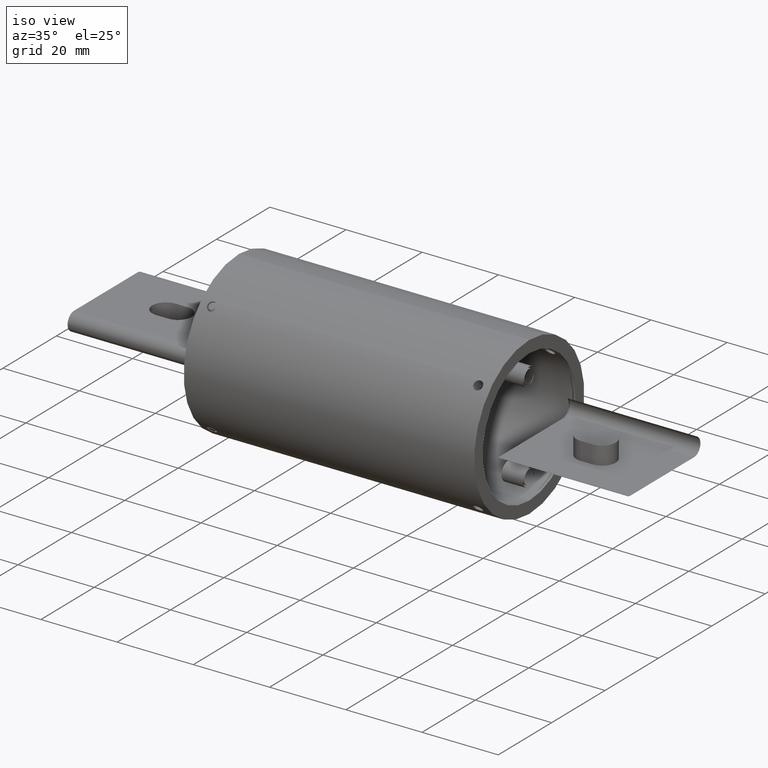
[diagram: clean part render]
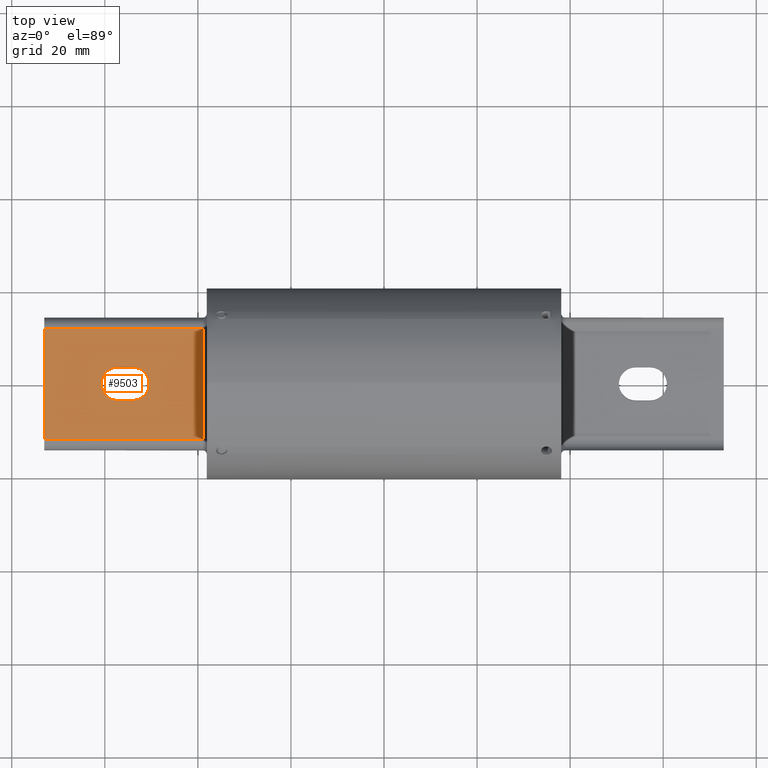
[diagram: tour spotlight — one face highlighted and labeled with its STEP entity id]
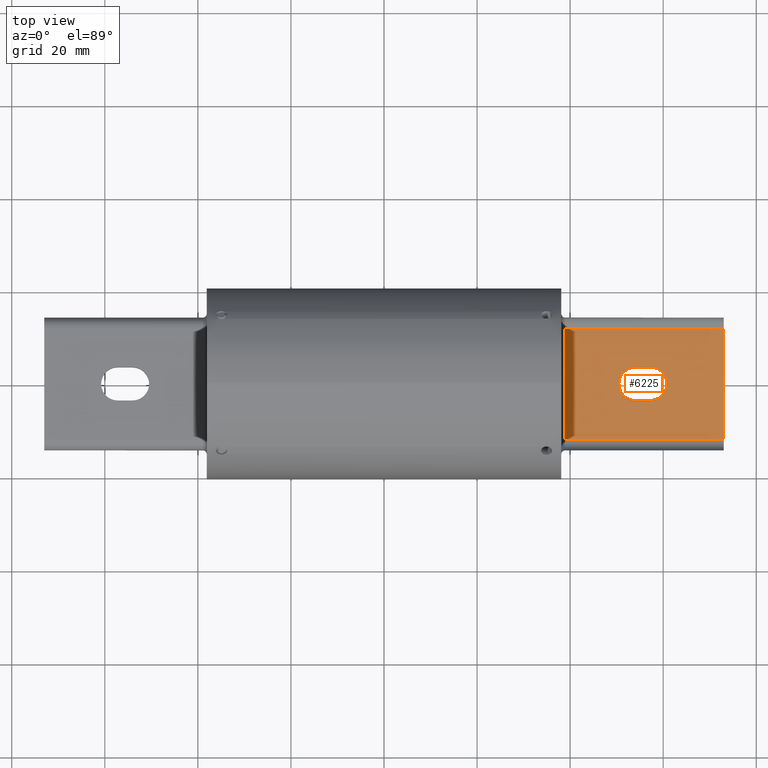
[diagram: tour spotlight — one face highlighted and labeled with its STEP entity id]
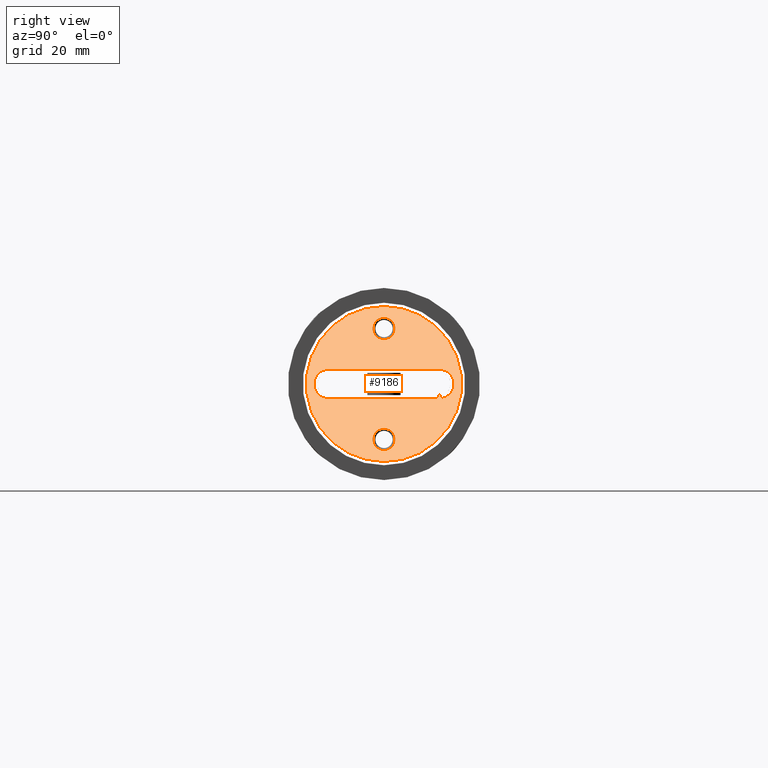
[diagram: tour spotlight — one face highlighted and labeled with its STEP entity id]
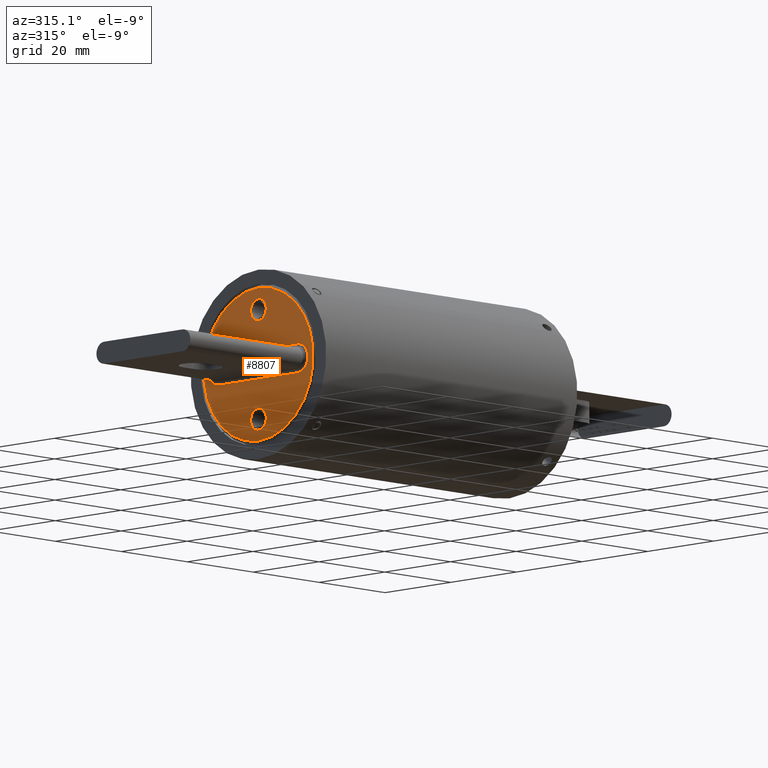
[diagram: tour spotlight — one face highlighted and labeled with its STEP entity id]
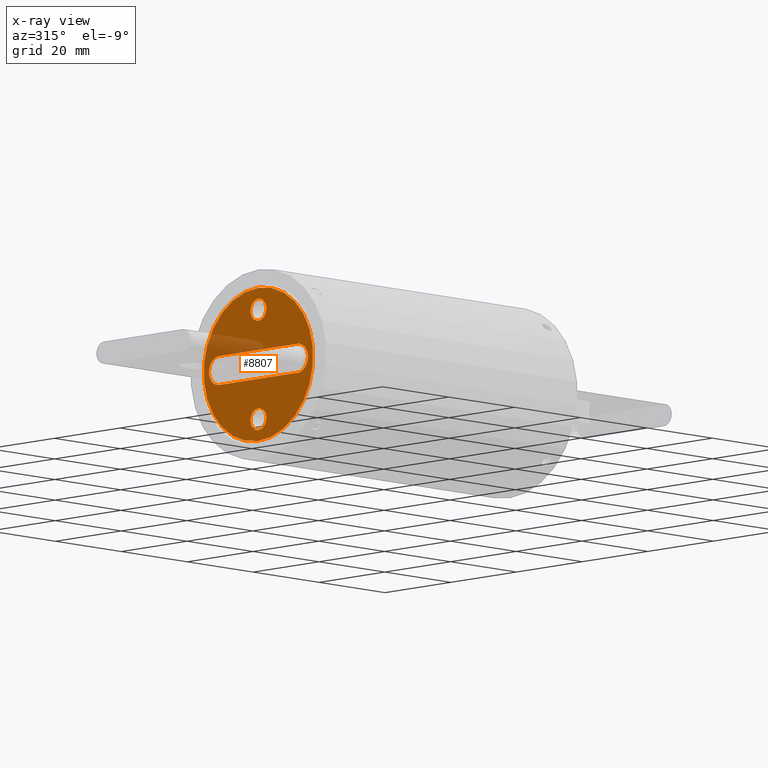
[diagram: x-ray of the same camera — body ghosted, this tour face saturated]
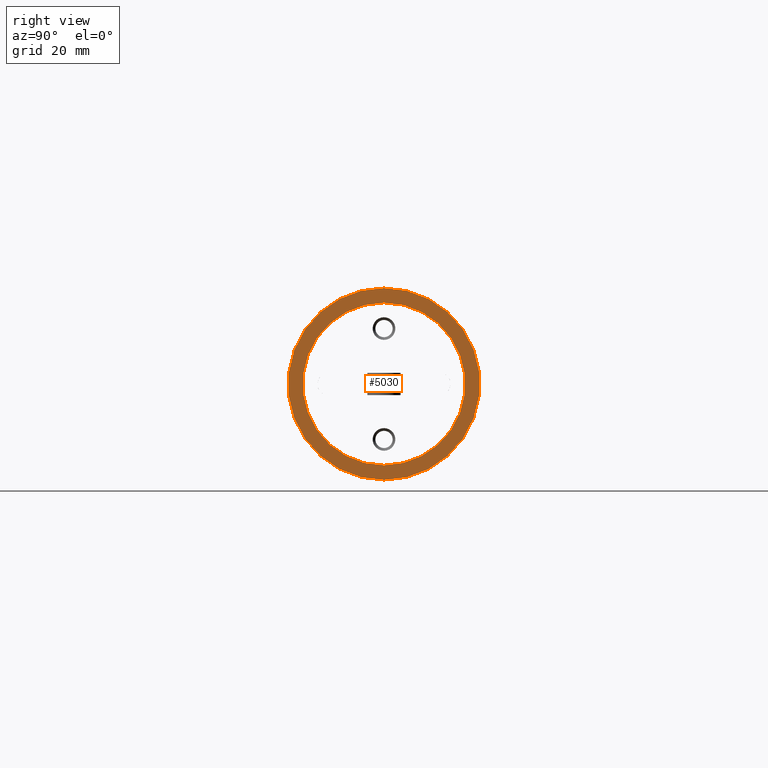
[diagram: tour spotlight — one face highlighted and labeled with its STEP entity id]
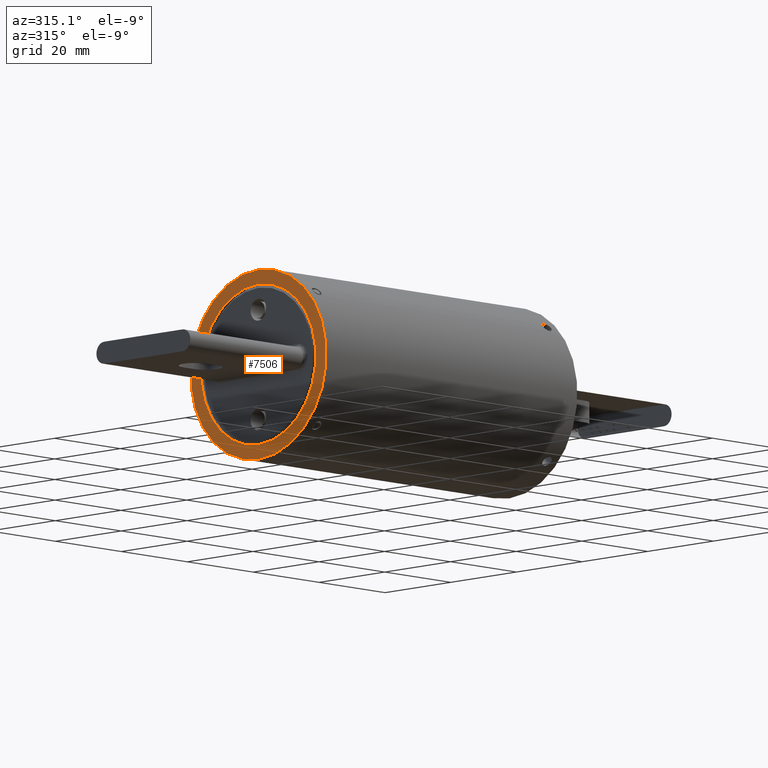
[diagram: tour spotlight — one face highlighted and labeled with its STEP entity id]
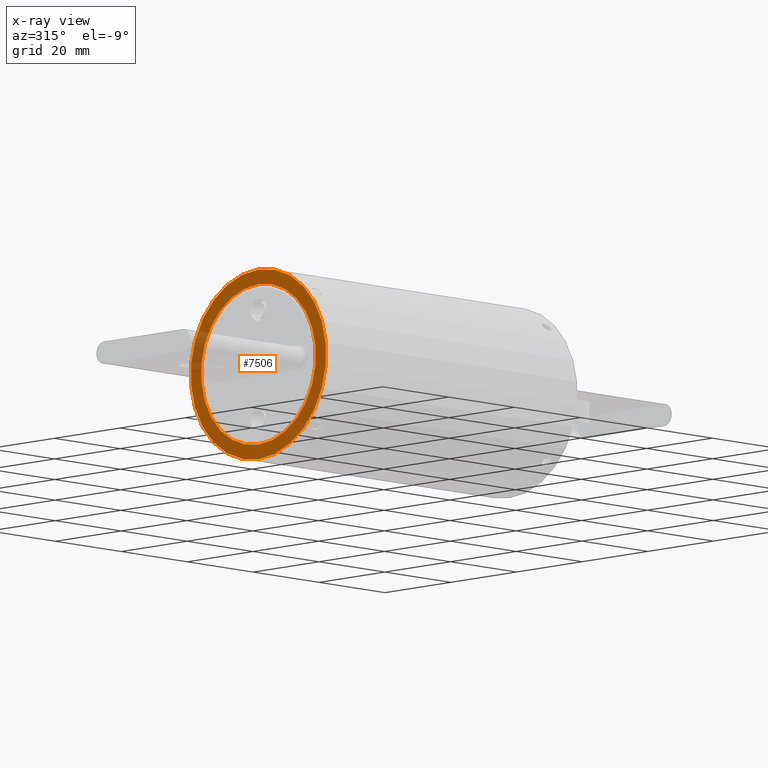
[diagram: x-ray of the same camera — body ghosted, this tour face saturated]
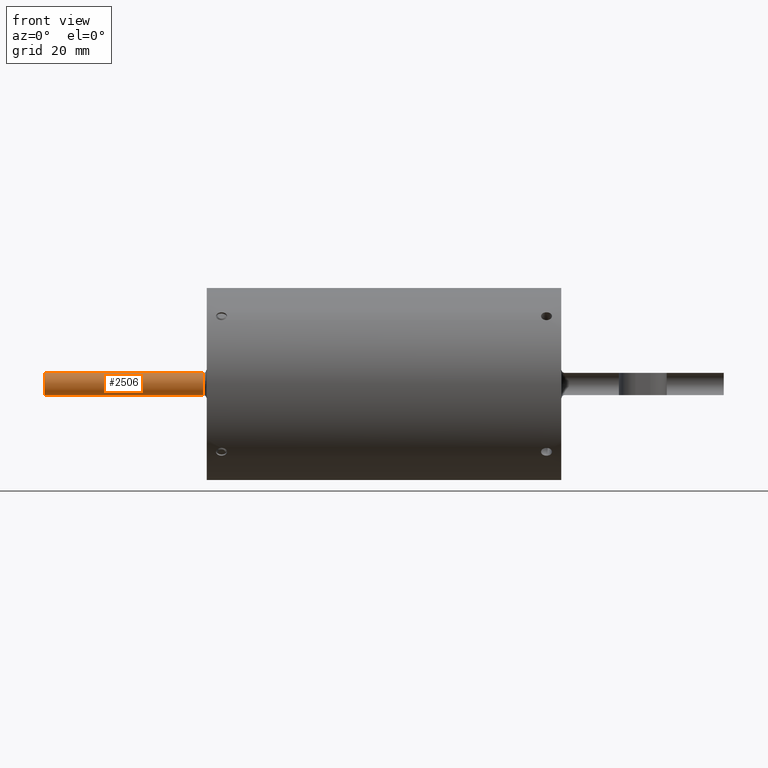
[diagram: tour spotlight — one face highlighted and labeled with its STEP entity id]
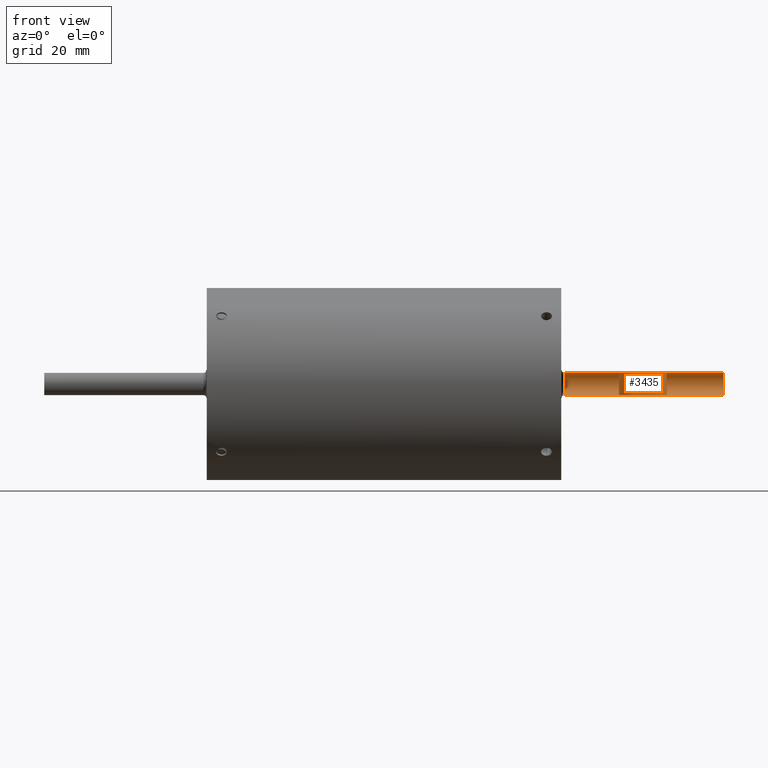
[diagram: tour spotlight — one face highlighted and labeled with its STEP entity id]
A machine part: a face-by-face anatomy tour. The part has 133 B-rep faces; the first image is the clean iso view, then the 8 largest visible faces are spotlighted one at a time (largest first), each with its STEP entity span.

Face 1 — top view, entity #9503. In plain terms, the highlighted planar face has unit normal (0, 0, -1).
Definition (entity closure, byte-faithful):
#592 = CARTESIAN_POINT ( 'NONE',  ( -2.875000000000002700, 0.4687500000000011700, 0.09375000000000041600 ) ) ;
#743 = EDGE_CURVE ( 'NONE', #4780, #4232, #5228, .T. ) ;
#854 = EDGE_LOOP ( 'NONE', ( #9204, #9250, #2054, #7766 ) ) ;
#994 = CARTESIAN_POINT ( 'NONE',  ( -1.530000000000000000, 0.4687500000000011700, 0.09375000000000065200 ) ) ;
#1025 = DIRECTION ( 'NONE',  ( -0.0000000000000000000, -1.000000000000000000, -1.916846675554422200E-016 ) ) ;
#1283 = VECTOR ( 'NONE', #4892, 39.37007874015748100 ) ;
#1353 = DIRECTION ( 'NONE',  ( -1.738190031670160000E-016, 8.414091820485932800E-017, 1.000000000000000000 ) ) ;
#1428 = VECTOR ( 'NONE', #9857, 39.37007874015748100 ) ;
#1615 = EDGE_CURVE ( 'NONE', #7961, #1893, #4885, .T. ) ;
#1697 = LINE ( 'NONE', #9928, #1428 ) ;
#1893 = VERTEX_POINT ( 'NONE', #3698 ) ;
#1903 = LINE ( 'NONE', #9492, #5975 ) ;
#2006 = EDGE_CURVE ( 'NONE', #5950, #3618, #1697, .T. ) ;
#2054 = ORIENTED_EDGE ( 'NONE', *, *, #2109, .F. ) ;
#2109 = EDGE_CURVE ( 'NONE', #7556, #2748, #9547, .T. ) ;
#2427 = EDGE_CURVE ( 'NONE', #1893, #4790, #5860, .T. ) ;
#2748 = VERTEX_POINT ( 'NONE', #592 ) ;
#2889 = DIRECTION ( 'NONE',  ( -1.000000000000000000, 0.0000000000000000000, -1.210925529106498000E-016 ) ) ;
#2903 = CARTESIAN_POINT ( 'NONE',  ( -2.875000000000002700, -0.4687500000000013300, 0.09375000000000023600 ) ) ;
#2904 = DIRECTION ( 'NONE',  ( -1.738190031670160000E-016, 8.414091820485932800E-017, 1.000000000000000000 ) ) ;
#2941 = CARTESIAN_POINT ( 'NONE',  ( -2.253000000000002300, -6.776607126545285500E-017, 0.09375000000000026400 ) ) ;
#3062 = VECTOR ( 'NONE', #1025, 39.37007874015748100 ) ;
#3151 = CIRCLE ( 'NONE', #6526, 0.1410000000000002100 ) ;
#3253 = VECTOR ( 'NONE', #9796, 39.37007874015748100 ) ;
#3592 = EDGE_CURVE ( 'NONE', #2748, #4780, #1903, .T. ) ;
#3618 = VERTEX_POINT ( 'NONE', #9351 ) ;
#3698 = CARTESIAN_POINT ( 'NONE',  ( -2.253000000000002300, -0.1410000000000003800, 0.09375000000000034700 ) ) ;
#3825 = CARTESIAN_POINT ( 'NONE',  ( -2.128000000000002300, -6.684394509043724200E-017, 0.09375000000000019400 ) ) ;
#4232 = VERTEX_POINT ( 'NONE', #6199 ) ;
#4780 = VERTEX_POINT ( 'NONE', #6324 ) ;
#4790 = VERTEX_POINT ( 'NONE', #6289 ) ;
#4885 = CIRCLE ( 'NONE', #8905, 0.1410000000000002100 ) ;
#4892 = DIRECTION ( 'NONE',  ( 1.000000000000000000, -3.331843783688782000E-032, 1.738190031670160000E-016 ) ) ;
#4918 = ORIENTED_EDGE ( 'NONE', *, *, #7081, .F. ) ;
#4988 = VECTOR ( 'NONE', #9220, 39.37007874015748100 ) ;
#5051 = CARTESIAN_POINT ( 'NONE',  ( -2.875000000000002700, -0.1410000000000003500, 0.09375000000000029100 ) ) ;
#5228 = LINE ( 'NONE', #994, #3062 ) ;
#5632 = EDGE_CURVE ( 'NONE', #4232, #7556, #5657, .T. ) ;
#5657 = LINE ( 'NONE', #9894, #3253 ) ;
#5689 = ORIENTED_EDGE ( 'NONE', *, *, #2427, .F. ) ;
#5860 = LINE ( 'NONE', #5051, #1283 ) ;
#5950 = VERTEX_POINT ( 'NONE', #6092 ) ;
#5975 = VECTOR ( 'NONE', #9411, 39.37007874015748100 ) ;
#6089 = DIRECTION ( 'NONE',  ( -1.000000000000000000, 0.0000000000000000000, -1.210925529106498000E-016 ) ) ;
#6092 = CARTESIAN_POINT ( 'NONE',  ( -2.128000000000002300, 0.1410000000000000700, 0.09375000000000033300 ) ) ;
#6199 = CARTESIAN_POINT ( 'NONE',  ( -1.530000000000000000, -0.4687500000000013900, 0.09375000000000012500 ) ) ;
#6258 = PLANE ( 'NONE',  #8138 ) ;
#6289 = CARTESIAN_POINT ( 'NONE',  ( -2.128000000000002300, -0.1410000000000003800, 0.09375000000000033300 ) ) ;
#6324 = CARTESIAN_POINT ( 'NONE',  ( -1.530000000000000000, 0.4687500000000011700, 0.09375000000000041600 ) ) ;
#6526 = AXIS2_PLACEMENT_3D ( 'NONE', #3825, #1353, #6089 ) ;
#6597 = AXIS2_PLACEMENT_3D ( 'NONE', #8108, #8074, #8062 ) ;
#6654 = CIRCLE ( 'NONE', #6597, 0.1410000000000002100 ) ;
#7081 = EDGE_CURVE ( 'NONE', #4790, #5950, #3151, .T. ) ;
#7322 = FACE_BOUND ( 'NONE', #8113, .T. ) ;
#7556 = VERTEX_POINT ( 'NONE', #2903 ) ;
#7561 = FACE_OUTER_BOUND ( 'NONE', #854, .T. ) ;
#7766 = ORIENTED_EDGE ( 'NONE', *, *, #5632, .F. ) ;
#7835 = ORIENTED_EDGE ( 'NONE', *, *, #8391, .F. ) ;
#7961 = VERTEX_POINT ( 'NONE', #9858 ) ;
#8062 = DIRECTION ( 'NONE',  ( -1.000000000000000000, 0.0000000000000000000, -1.210925529106498000E-016 ) ) ;
#8074 = DIRECTION ( 'NONE',  ( -1.738190031670160000E-016, 8.414091820485932800E-017, 1.000000000000000000 ) ) ;
#8108 = CARTESIAN_POINT ( 'NONE',  ( -2.253000000000002300, -6.776607126545285500E-017, 0.09375000000000026400 ) ) ;
#8113 = EDGE_LOOP ( 'NONE', ( #7835, #8162, #4918, #5689, #9093 ) ) ;
#8138 = AXIS2_PLACEMENT_3D ( 'NONE', #10082, #9481, #9439 ) ;
#8162 = ORIENTED_EDGE ( 'NONE', *, *, #2006, .F. ) ;
#8391 = EDGE_CURVE ( 'NONE', #3618, #7961, #6654, .T. ) ;
#8905 = AXIS2_PLACEMENT_3D ( 'NONE', #2941, #2904, #2889 ) ;
#9093 = ORIENTED_EDGE ( 'NONE', *, *, #1615, .F. ) ;
#9204 = ORIENTED_EDGE ( 'NONE', *, *, #743, .F. ) ;
#9220 = DIRECTION ( 'NONE',  ( 0.0000000000000000000, 1.000000000000000000, 1.916846675554422200E-016 ) ) ;
#9250 = ORIENTED_EDGE ( 'NONE', *, *, #3592, .F. ) ;
#9351 = CARTESIAN_POINT ( 'NONE',  ( -2.253000000000002300, 0.1410000000000000700, 0.09375000000000036100 ) ) ;
#9411 = DIRECTION ( 'NONE',  ( 1.000000000000000000, -3.331843783688782000E-032, 1.738190031670160000E-016 ) ) ;
#9439 = DIRECTION ( 'NONE',  ( 0.0000000000000000000, 1.000000000000000000, 1.916846675554422200E-016 ) ) ;
#9476 = CARTESIAN_POINT ( 'NONE',  ( -2.875000000000002700, 0.4687500000000011700, 0.09375000000000041600 ) ) ;
#9481 = DIRECTION ( 'NONE',  ( 1.738190031670160000E-016, 1.916846675554422200E-016, -1.000000000000000000 ) ) ;
#9492 = CARTESIAN_POINT ( 'NONE',  ( -2.875000000000002700, 0.4687500000000011700, 0.09375000000000041600 ) ) ;
#9503 = ADVANCED_FACE ( 'NONE', ( #7561, #7322 ), #6258, .F. ) ;
#9547 = LINE ( 'NONE', #9476, #4988 ) ;
#9796 = DIRECTION ( 'NONE',  ( -1.000000000000000000, 3.331843783688782000E-032, -1.738190031670160000E-016 ) ) ;
#9857 = DIRECTION ( 'NONE',  ( -1.000000000000000000, 3.331843783688782000E-032, -1.738190031670160000E-016 ) ) ;
#9858 = CARTESIAN_POINT ( 'NONE',  ( -2.394000000000002800, -7.565428234715843400E-017, 0.09375000000000025000 ) ) ;
#9894 = CARTESIAN_POINT ( 'NONE',  ( -2.875000000000002700, -0.4687500000000013300, 0.09375000000000023600 ) ) ;
#9928 = CARTESIAN_POINT ( 'NONE',  ( -2.875000000000002700, 0.1410000000000000100, 0.09375000000000034700 ) ) ;
#10082 = CARTESIAN_POINT ( 'NONE',  ( -2.875000000000002700, 0.4687500000000011700, 0.09375000000000041600 ) ) ;

Face 2 — top view, entity #6225. In plain terms, the highlighted planar face has unit normal (-0, 0, -1).
Definition (entity closure, byte-faithful):
#688 = CARTESIAN_POINT ( 'NONE',  ( 2.875000000000000400, -0.1409999926358003500, 0.09374994372702030700 ) ) ;
#740 = DIRECTION ( 'NONE',  ( -1.000000000000000000, 0.0000000000000000000, 0.0000000000000000000 ) ) ;
#768 = CARTESIAN_POINT ( 'NONE',  ( 1.987000000000000800, 7.364199508504401600E-009, 0.09374994372702036300 ) ) ;
#1010 = EDGE_CURVE ( 'NONE', #4636, #1834, #6086, .T. ) ;
#1135 = EDGE_CURVE ( 'NONE', #1826, #8127, #5087, .T. ) ;
#1157 = DIRECTION ( 'NONE',  ( 3.476380063340317700E-017, 1.994249035374912900E-017, 1.000000000000000000 ) ) ;
#1225 = CARTESIAN_POINT ( 'NONE',  ( 2.128000000000000600, 7.364199510374010100E-009, 0.09374994372702036300 ) ) ;
#1498 = ORIENTED_EDGE ( 'NONE', *, *, #7043, .T. ) ;
#1521 = LINE ( 'NONE', #9719, #7606 ) ;
#1694 = DIRECTION ( 'NONE',  ( -5.729821613754581700E-034, -1.000000000000000000, -1.648214956177438100E-017 ) ) ;
#1754 = CARTESIAN_POINT ( 'NONE',  ( 2.875000000000000400, -0.4687499926358005300, 0.09374994372702030700 ) ) ;
#1820 = CARTESIAN_POINT ( 'NONE',  ( 2.875000000000000400, -0.4687499926358005300, 0.09374994372702030700 ) ) ;
#1826 = VERTEX_POINT ( 'NONE', #9410 ) ;
#1834 = VERTEX_POINT ( 'NONE', #6525 ) ;
#1849 = EDGE_CURVE ( 'NONE', #9752, #1826, #5102, .T. ) ;
#2018 = DIRECTION ( 'NONE',  ( -1.000000000000000000, 0.0000000000000000000, 3.476380063340317700E-017 ) ) ;
#2135 = EDGE_CURVE ( 'NONE', #1834, #9752, #5229, .T. ) ;
#2171 = DIRECTION ( 'NONE',  ( -1.000000000000000000, 0.0000000000000000000, 3.476380063340317700E-017 ) ) ;
#2213 = DIRECTION ( 'NONE',  ( -3.476380063340317700E-017, 1.648214956177438100E-017, -1.000000000000000000 ) ) ;
#2244 = CARTESIAN_POINT ( 'NONE',  ( 2.875000000000000400, -0.4687499926358005300, 0.09374994372702030700 ) ) ;
#2316 = FACE_OUTER_BOUND ( 'NONE', #2964, .T. ) ;
#2387 = AXIS2_PLACEMENT_3D ( 'NONE', #2244, #2213, #2171 ) ;
#2465 = EDGE_CURVE ( 'NONE', #9467, #7679, #6460, .T. ) ;
#2626 = EDGE_CURVE ( 'NONE', #7805, #9467, #8431, .T. ) ;
#2897 = EDGE_CURVE ( 'NONE', #6774, #7805, #4442, .T. ) ;
#2915 = PLANE ( 'NONE',  #2387 ) ;
#2964 = EDGE_LOOP ( 'NONE', ( #7335, #8374, #6841, #3484 ) ) ;
#3009 = EDGE_CURVE ( 'NONE', #7679, #6774, #1521, .T. ) ;
#3126 = AXIS2_PLACEMENT_3D ( 'NONE', #1225, #1157, #740 ) ;
#3484 = ORIENTED_EDGE ( 'NONE', *, *, #2465, .T. ) ;
#3693 = VECTOR ( 'NONE', #10182, 39.37007874015748100 ) ;
#4376 = CARTESIAN_POINT ( 'NONE',  ( 2.875000000000000400, 0.4687500073641994700, 0.09374994372702032100 ) ) ;
#4442 = LINE ( 'NONE', #4376, #6318 ) ;
#4460 = DIRECTION ( 'NONE',  ( -1.000000000000000000, 0.0000000000000000000, 3.476380063340317700E-017 ) ) ;
#4500 = CARTESIAN_POINT ( 'NONE',  ( 1.530000000000000200, 0.4687500073641994700, 0.09374994372702033500 ) ) ;
#4583 = VECTOR ( 'NONE', #4460, 39.37007874015748100 ) ;
#4636 = VERTEX_POINT ( 'NONE', #7449 ) ;
#4874 = VECTOR ( 'NONE', #2018, 39.37007874015748100 ) ;
#4978 = CARTESIAN_POINT ( 'NONE',  ( 2.875000000000000400, -0.4687499926358005300, 0.09374994372702030700 ) ) ;
#5007 = ORIENTED_EDGE ( 'NONE', *, *, #1135, .T. ) ;
#5087 = CIRCLE ( 'NONE', #10111, 0.1409999999999999300 ) ;
#5102 = LINE ( 'NONE', #6637, #4874 ) ;
#5229 = CIRCLE ( 'NONE', #7988, 0.1409999999999999300 ) ;
#6086 = LINE ( 'NONE', #688, #3693 ) ;
#6182 = DIRECTION ( 'NONE',  ( 5.729821613754581700E-034, 1.000000000000000000, 1.648214956177438100E-017 ) ) ;
#6225 = ADVANCED_FACE ( 'NONE', ( #2316, #8343 ), #2915, .T. ) ;
#6318 = VECTOR ( 'NONE', #6467, 39.37007874015748100 ) ;
#6452 = VECTOR ( 'NONE', #1694, 39.37007874015748100 ) ;
#6460 = LINE ( 'NONE', #4978, #4583 ) ;
#6467 = DIRECTION ( 'NONE',  ( 1.000000000000000000, -0.0000000000000000000, -3.476380063340317700E-017 ) ) ;
#6525 = CARTESIAN_POINT ( 'NONE',  ( 2.253000000000000100, -0.1409999926358004000, 0.09374994372702029300 ) ) ;
#6549 = CIRCLE ( 'NONE', #3126, 0.1409999999999999300 ) ;
#6637 = CARTESIAN_POINT ( 'NONE',  ( 2.875000000000000400, 0.1410000073641994000, 0.09374994372702032100 ) ) ;
#6774 = VERTEX_POINT ( 'NONE', #4500 ) ;
#6841 = ORIENTED_EDGE ( 'NONE', *, *, #2626, .T. ) ;
#6894 = ORIENTED_EDGE ( 'NONE', *, *, #1849, .T. ) ;
#7043 = EDGE_CURVE ( 'NONE', #8127, #4636, #6549, .T. ) ;
#7335 = ORIENTED_EDGE ( 'NONE', *, *, #3009, .T. ) ;
#7424 = ORIENTED_EDGE ( 'NONE', *, *, #1010, .T. ) ;
#7449 = CARTESIAN_POINT ( 'NONE',  ( 2.128000000000000600, -0.1409999926358003800, 0.09374994372702036300 ) ) ;
#7606 = VECTOR ( 'NONE', #6182, 39.37007874015748100 ) ;
#7679 = VERTEX_POINT ( 'NONE', #9155 ) ;
#7805 = VERTEX_POINT ( 'NONE', #8346 ) ;
#7894 = EDGE_LOOP ( 'NONE', ( #8925, #6894, #5007, #1498, #7424 ) ) ;
#7988 = AXIS2_PLACEMENT_3D ( 'NONE', #9050, #9047, #9039 ) ;
#8127 = VERTEX_POINT ( 'NONE', #768 ) ;
#8343 = FACE_BOUND ( 'NONE', #7894, .T. ) ;
#8346 = CARTESIAN_POINT ( 'NONE',  ( 2.875000000000000400, 0.4687500073641994700, 0.09374994372702032100 ) ) ;
#8374 = ORIENTED_EDGE ( 'NONE', *, *, #2897, .T. ) ;
#8431 = LINE ( 'NONE', #1820, #6452 ) ;
#8825 = DIRECTION ( 'NONE',  ( -1.000000000000000000, 0.0000000000000000000, 0.0000000000000000000 ) ) ;
#8836 = DIRECTION ( 'NONE',  ( 3.476380063340317700E-017, 1.994249035374912900E-017, 1.000000000000000000 ) ) ;
#8857 = CARTESIAN_POINT ( 'NONE',  ( 2.128000000000000600, 7.364199510374010100E-009, 0.09374994372702036300 ) ) ;
#8925 = ORIENTED_EDGE ( 'NONE', *, *, #2135, .T. ) ;
#9039 = DIRECTION ( 'NONE',  ( -1.000000000000000000, 0.0000000000000000000, 0.0000000000000000000 ) ) ;
#9047 = DIRECTION ( 'NONE',  ( 3.476380063340317700E-017, 1.994249035374912900E-017, 1.000000000000000000 ) ) ;
#9050 = CARTESIAN_POINT ( 'NONE',  ( 2.253000000000000100, 7.364199510943354400E-009, 0.09374994372702029300 ) ) ;
#9155 = CARTESIAN_POINT ( 'NONE',  ( 1.530000000000000200, -0.4687499926358005300, 0.09374994372702030700 ) ) ;
#9410 = CARTESIAN_POINT ( 'NONE',  ( 2.128000000000000600, 0.1410000073641994000, 0.09374994372702033500 ) ) ;
#9467 = VERTEX_POINT ( 'NONE', #1754 ) ;
#9719 = CARTESIAN_POINT ( 'NONE',  ( 1.530000000000000200, -0.4687499926358005300, 0.09374994372702036300 ) ) ;
#9752 = VERTEX_POINT ( 'NONE', #9759 ) ;
#9759 = CARTESIAN_POINT ( 'NONE',  ( 2.253000000000000100, 0.1410000073641994000, 0.09374994372702030700 ) ) ;
#10111 = AXIS2_PLACEMENT_3D ( 'NONE', #8857, #8836, #8825 ) ;
#10182 = DIRECTION ( 'NONE',  ( 1.000000000000000000, -0.0000000000000000000, -3.476380063340317700E-017 ) ) ;

Face 3 — right view, entity #9186. In plain terms, the highlighted planar face has unit normal (1, 0, -0).
Definition (entity closure, byte-faithful):
#67 = EDGE_CURVE ( 'NONE', #4573, #89, #8846, .T. ) ;
#76 = CIRCLE ( 'NONE', #2696, 0.6560000000000011400 ) ;
#89 = VERTEX_POINT ( 'NONE', #2976 ) ;
#192 =( BOUNDED_CURVE ( )  B_SPLINE_CURVE ( 3, ( #1815, #8935, #6405, #7639 ),
 .UNSPECIFIED., .F., .T. ) 
 B_SPLINE_CURVE_WITH_KNOTS ( ( 4, 4 ),
 ( 0.0000000000000000000, 1.000000000000000000 ),
 .UNSPECIFIED. ) 
 CURVE ( )  GEOMETRIC_REPRESENTATION_ITEM ( )  RATIONAL_B_SPLINE_CURVE ( ( 1.000000000000000000, 0.3333333333333335400, 0.3333333333333335400, 1.000000000000000000 ) ) 
 REPRESENTATION_ITEM ( '' )  );
#221 = CARTESIAN_POINT ( 'NONE',  ( 1.500000000000000400, -0.4687499926358005300, 0.1237499437270202800 ) ) ;
#229 = ORIENTED_EDGE ( 'NONE', *, *, #3308, .F. ) ;
#322 = DIRECTION ( 'NONE',  ( -4.554757781245011000E-018, 1.000000000000000000, 1.648214956177438100E-017 ) ) ;
#395 = EDGE_CURVE ( 'NONE', #2954, #4761, #76, .T. ) ;
#546 = DIRECTION ( 'NONE',  ( 0.0000000000000000000, 0.0000000000000000000, 1.000000000000000000 ) ) ;
#584 = EDGE_LOOP ( 'NONE', ( #8563, #9688 ) ) ;
#664 = DIRECTION ( 'NONE',  ( -1.000000000000000000, -4.554757781245011700E-018, 3.476380063340317700E-017 ) ) ;
#694 = CARTESIAN_POINT ( 'NONE',  ( 1.500000000000000400, 7.364199464479785600E-009, -0.4690000562729797500 ) ) ;
#701 = CARTESIAN_POINT ( 'NONE',  ( 1.500000000000000400, 7.364199475490442100E-009, -0.5630000562729797800 ) ) ;
#910 = CARTESIAN_POINT ( 'NONE',  ( 1.500000000000000400, 0.4687500073641994700, -0.1237500562729796900 ) ) ;
#976 = FACE_BOUND ( 'NONE', #2597, .T. ) ;
#1026 = CARTESIAN_POINT ( 'NONE',  ( 1.500000000000000400, 0.5925000073641996100, -5.627297962260340900E-008 ) ) ;
#1086 = ORIENTED_EDGE ( 'NONE', *, *, #67, .F. ) ;
#1092 = CIRCLE ( 'NONE', #6478, 0.09400000000000001400 ) ;
#1208 = FACE_BOUND ( 'NONE', #584, .T. ) ;
#1599 = VERTEX_POINT ( 'NONE', #3150 ) ;
#1743 = AXIS2_PLACEMENT_3D ( 'NONE', #8297, #9162, #9494 ) ;
#1792 =( BOUNDED_CURVE ( )  B_SPLINE_CURVE ( 3, ( #6968, #6994, #6565, #6497 ),
 .UNSPECIFIED., .F., .F. ) 
 B_SPLINE_CURVE_WITH_KNOTS ( ( 4, 4 ),
 ( 0.0000000000000000000, 1.000000000000000000 ),
 .UNSPECIFIED. ) 
 CURVE ( )  GEOMETRIC_REPRESENTATION_ITEM ( )  RATIONAL_B_SPLINE_CURVE ( ( 1.000000000000000000, 0.8047378541243649400, 0.8047378541243649400, 1.000000000000000000 ) ) 
 REPRESENTATION_ITEM ( '' )  );
#1815 = CARTESIAN_POINT ( 'NONE',  ( 1.500000000000000400, -0.4687499926358006400, -0.1237500562729797200 ) ) ;
#2069 = EDGE_CURVE ( 'NONE', #3294, #4375, #9290, .T. ) ;
#2220 = VERTEX_POINT ( 'NONE', #8170 ) ;
#2355 = CARTESIAN_POINT ( 'NONE',  ( 1.500000000000000400, 0.4687500073641994700, -0.1237500562729796900 ) ) ;
#2397 = CARTESIAN_POINT ( 'NONE',  ( 1.500000000000000400, 0.5412410790205289800, -0.1237500562729796600 ) ) ;
#2507 = EDGE_CURVE ( 'NONE', #1599, #5312, #4453, .T. ) ;
#2597 = EDGE_LOOP ( 'NONE', ( #8838, #7928, #229, #1086, #7953 ) ) ;
#2696 = AXIS2_PLACEMENT_3D ( 'NONE', #7578, #3594, #3589 ) ;
#2794 = EDGE_CURVE ( 'NONE', #8301, #2220, #9257, .T. ) ;
#2865 = DIRECTION ( 'NONE',  ( 0.0000000000000000000, 0.0000000000000000000, 1.000000000000000000 ) ) ;
#2870 = DIRECTION ( 'NONE',  ( -1.000000000000000000, -4.554757781245011700E-018, 3.476380063340317700E-017 ) ) ;
#2885 = CARTESIAN_POINT ( 'NONE',  ( 1.500000000000000400, 7.364199489372307900E-009, 0.4689999437270202000 ) ) ;
#2954 = VERTEX_POINT ( 'NONE', #4117 ) ;
#2976 = CARTESIAN_POINT ( 'NONE',  ( 1.500000000000000400, -0.4687499926358006400, -0.1237500562729797200 ) ) ;
#3056 = CARTESIAN_POINT ( 'NONE',  ( 1.500000000000000400, 0.5925000073641996100, -5.627297962260340900E-008 ) ) ;
#3096 = FACE_BOUND ( 'NONE', #7405, .T. ) ;
#3144 = CIRCLE ( 'NONE', #5962, 0.6560000000000011400 ) ;
#3150 = CARTESIAN_POINT ( 'NONE',  ( 1.500000000000000400, 7.364199500382963600E-009, 0.3749999437270201700 ) ) ;
#3294 = VERTEX_POINT ( 'NONE', #701 ) ;
#3308 = EDGE_CURVE ( 'NONE', #89, #8301, #192, .T. ) ;
#3431 = VERTEX_POINT ( 'NONE', #1026 ) ;
#3486 = DIRECTION ( 'NONE',  ( 0.0000000000000000000, 0.0000000000000000000, 1.000000000000000000 ) ) ;
#3589 = DIRECTION ( 'NONE',  ( 0.0000000000000000000, 0.0000000000000000000, 1.000000000000000000 ) ) ;
#3594 = DIRECTION ( 'NONE',  ( 1.000000000000000000, -0.0000000000000000000, -0.0000000000000000000 ) ) ;
#3607 = EDGE_LOOP ( 'NONE', ( #7200, #8506 ) ) ;
#3689 = ORIENTED_EDGE ( 'NONE', *, *, #10001, .F. ) ;
#3707 = CARTESIAN_POINT ( 'NONE',  ( 1.500000000000000400, 7.364199464479785600E-009, -0.3750000562729797200 ) ) ;
#4117 = CARTESIAN_POINT ( 'NONE',  ( 1.500000000000000400, 7.364199555496255100E-009, -0.6560000562729808600 ) ) ;
#4375 = VERTEX_POINT ( 'NONE', #3707 ) ;
#4453 = CIRCLE ( 'NONE', #6517, 0.09400000000000001400 ) ;
#4573 = VERTEX_POINT ( 'NONE', #910 ) ;
#4633 = CARTESIAN_POINT ( 'NONE',  ( 1.500000000000000400, 0.5925000073641995000, -0.07249112792930911800 ) ) ;
#4752 = VECTOR ( 'NONE', #5994, 39.37007874015748100 ) ;
#4761 = VERTEX_POINT ( 'NONE', #7048 ) ;
#4800 = DIRECTION ( 'NONE',  ( 0.0000000000000000000, 0.0000000000000000000, 1.000000000000000000 ) ) ;
#4840 = DIRECTION ( 'NONE',  ( -1.000000000000000000, -4.554757781245011700E-018, 3.476380063340317700E-017 ) ) ;
#4915 = CARTESIAN_POINT ( 'NONE',  ( 1.500000000000000400, 7.364199489372307900E-009, 0.4689999437270202000 ) ) ;
#5255 = FACE_OUTER_BOUND ( 'NONE', #3607, .T. ) ;
#5312 = VERTEX_POINT ( 'NONE', #6096 ) ;
#5962 = AXIS2_PLACEMENT_3D ( 'NONE', #8865, #8851, #3486 ) ;
#5994 = DIRECTION ( 'NONE',  ( 4.554757781245011700E-018, -1.000000000000000000, -1.583406914406433900E-034 ) ) ;
#6036 = CARTESIAN_POINT ( 'NONE',  ( 1.500000000000000400, 7.364199505644013500E-009, -0.1237500562729797300 ) ) ;
#6096 = CARTESIAN_POINT ( 'NONE',  ( 1.500000000000000400, 7.364199489372307900E-009, 0.5629999437270202200 ) ) ;
#6405 = CARTESIAN_POINT ( 'NONE',  ( 1.500000000000000400, -0.7162499926358002500, 0.1237499437270204300 ) ) ;
#6478 = AXIS2_PLACEMENT_3D ( 'NONE', #694, #664, #546 ) ;
#6497 = CARTESIAN_POINT ( 'NONE',  ( 1.500000000000000400, 0.5925000073641996100, -5.627297962260340900E-008 ) ) ;
#6517 = AXIS2_PLACEMENT_3D ( 'NONE', #2885, #2870, #2865 ) ;
#6565 = CARTESIAN_POINT ( 'NONE',  ( 1.500000000000000400, 0.5925000073641992800, 0.07249101538334983000 ) ) ;
#6658 = AXIS2_PLACEMENT_3D ( 'NONE', #4915, #4840, #4800 ) ;
#6968 = CARTESIAN_POINT ( 'NONE',  ( 1.500000000000000400, 0.4687500073641994700, 0.1237499437270203100 ) ) ;
#6994 = CARTESIAN_POINT ( 'NONE',  ( 1.500000000000000400, 0.5412410790205289800, 0.1237499437270203100 ) ) ;
#7048 = CARTESIAN_POINT ( 'NONE',  ( 1.500000000000000400, 7.364199473322454700E-009, 0.6559999437270214200 ) ) ;
#7200 = ORIENTED_EDGE ( 'NONE', *, *, #8274, .F. ) ;
#7405 = EDGE_LOOP ( 'NONE', ( #3689, #9200 ) ) ;
#7578 = CARTESIAN_POINT ( 'NONE',  ( 1.500000000000000400, 7.364199473322454700E-009, -5.627297975335516700E-008 ) ) ;
#7639 = CARTESIAN_POINT ( 'NONE',  ( 1.500000000000000400, -0.4687499926358005300, 0.1237499437270202800 ) ) ;
#7928 = ORIENTED_EDGE ( 'NONE', *, *, #2794, .F. ) ;
#7953 = ORIENTED_EDGE ( 'NONE', *, *, #9614, .F. ) ;
#8057 = AXIS2_PLACEMENT_3D ( 'NONE', #9401, #9390, #9372 ) ;
#8170 = CARTESIAN_POINT ( 'NONE',  ( 1.500000000000000400, 0.4687500073641994700, 0.1237499437270203100 ) ) ;
#8206 =( BOUNDED_CURVE ( )  B_SPLINE_CURVE ( 3, ( #3056, #4633, #2397, #2355 ),
 .UNSPECIFIED., .F., .T. ) 
 B_SPLINE_CURVE_WITH_KNOTS ( ( 4, 4 ),
 ( 0.0000000000000000000, 1.000000000000000000 ),
 .UNSPECIFIED. ) 
 CURVE ( )  GEOMETRIC_REPRESENTATION_ITEM ( )  RATIONAL_B_SPLINE_CURVE ( ( 1.000000000000000000, 0.8047378541243649400, 0.8047378541243649400, 1.000000000000000000 ) ) 
 REPRESENTATION_ITEM ( '' )  );
#8223 = PLANE ( 'NONE',  #1743 ) ;
#8274 = EDGE_CURVE ( 'NONE', #4761, #2954, #3144, .T. ) ;
#8297 = CARTESIAN_POINT ( 'NONE',  ( 1.500000000000000400, 7.364199505644013500E-009, -5.627297975439807600E-008 ) ) ;
#8301 = VERTEX_POINT ( 'NONE', #8841 ) ;
#8506 = ORIENTED_EDGE ( 'NONE', *, *, #395, .F. ) ;
#8563 = ORIENTED_EDGE ( 'NONE', *, *, #10139, .F. ) ;
#8838 = ORIENTED_EDGE ( 'NONE', *, *, #9339, .F. ) ;
#8841 = CARTESIAN_POINT ( 'NONE',  ( 1.500000000000000400, -0.4687499926358005300, 0.1237499437270202800 ) ) ;
#8846 = LINE ( 'NONE', #6036, #4752 ) ;
#8851 = DIRECTION ( 'NONE',  ( 1.000000000000000000, -0.0000000000000000000, -0.0000000000000000000 ) ) ;
#8865 = CARTESIAN_POINT ( 'NONE',  ( 1.500000000000000400, 7.364199473322454700E-009, -5.627297975335516700E-008 ) ) ;
#8935 = CARTESIAN_POINT ( 'NONE',  ( 1.500000000000000400, -0.7162499926358005800, -0.1237500562729794800 ) ) ;
#9025 = VECTOR ( 'NONE', #322, 39.37007874015748100 ) ;
#9162 = DIRECTION ( 'NONE',  ( 1.000000000000000000, 4.554757781245011700E-018, -3.476380063340317700E-017 ) ) ;
#9186 = ADVANCED_FACE ( 'NONE', ( #5255, #1208, #3096, #976 ), #8223, .F. ) ;
#9200 = ORIENTED_EDGE ( 'NONE', *, *, #2507, .F. ) ;
#9257 = LINE ( 'NONE', #221, #9025 ) ;
#9290 = CIRCLE ( 'NONE', #8057, 0.09400000000000001400 ) ;
#9339 = EDGE_CURVE ( 'NONE', #2220, #3431, #1792, .T. ) ;
#9372 = DIRECTION ( 'NONE',  ( 0.0000000000000000000, 0.0000000000000000000, 1.000000000000000000 ) ) ;
#9390 = DIRECTION ( 'NONE',  ( -1.000000000000000000, -4.554757781245011700E-018, 3.476380063340317700E-017 ) ) ;
#9401 = CARTESIAN_POINT ( 'NONE',  ( 1.500000000000000400, 7.364199464479785600E-009, -0.4690000562729797500 ) ) ;
#9494 = DIRECTION ( 'NONE',  ( -3.476380063340317700E-017, 0.0000000000000000000, -1.000000000000000000 ) ) ;
#9614 = EDGE_CURVE ( 'NONE', #3431, #4573, #8206, .T. ) ;
#9688 = ORIENTED_EDGE ( 'NONE', *, *, #2069, .F. ) ;
#10001 = EDGE_CURVE ( 'NONE', #5312, #1599, #10171, .T. ) ;
#10139 = EDGE_CURVE ( 'NONE', #4375, #3294, #1092, .T. ) ;
#10171 = CIRCLE ( 'NONE', #6658, 0.09400000000000001400 ) ;

Face 4 — auxiliary view, entity #8807. An x-ray twin of the same camera follows (body ghosted, this face saturated) — the face is partly hidden behind the body. In plain terms, the highlighted planar face has unit normal (-1, 0, 0).
Definition (entity closure, byte-faithful):
#52 = EDGE_CURVE ( 'NONE', #3498, #7896, #2827, .T. ) ;
#416 = CIRCLE ( 'NONE', #5943, 0.09400000000000020800 ) ;
#593 = EDGE_LOOP ( 'NONE', ( #1451, #855 ) ) ;
#595 = VERTEX_POINT ( 'NONE', #3971 ) ;
#656 = VERTEX_POINT ( 'NONE', #6920 ) ;
#715 = ORIENTED_EDGE ( 'NONE', *, *, #1426, .T. ) ;
#855 = ORIENTED_EDGE ( 'NONE', *, *, #2361, .T. ) ;
#1163 = CARTESIAN_POINT ( 'NONE',  ( -1.500000000000000200, -7.775028420750317700E-017, -0.5630000000000001700 ) ) ;
#1221 = VERTEX_POINT ( 'NONE', #8000 ) ;
#1367 = CARTESIAN_POINT ( 'NONE',  ( -1.500000000000000900, -6.829619984160658000E-017, -0.6560000000000016900 ) ) ;
#1378 = DIRECTION ( 'NONE',  ( 0.0000000000000000000, 0.0000000000000000000, -1.000000000000000000 ) ) ;
#1426 = EDGE_CURVE ( 'NONE', #7896, #656, #7391, .T. ) ;
#1451 = ORIENTED_EDGE ( 'NONE', *, *, #9916, .T. ) ;
#1580 = ORIENTED_EDGE ( 'NONE', *, *, #5921, .T. ) ;
#1837 = CIRCLE ( 'NONE', #2563, 0.09400000000000020800 ) ;
#1984 = CARTESIAN_POINT ( 'NONE',  ( -1.500000000000000200, 0.4687500000000011700, 0.1237500000000001800 ) ) ;
#2092 = FACE_BOUND ( 'NONE', #3265, .T. ) ;
#2112 = CARTESIAN_POINT ( 'NONE',  ( -1.500000000000000200, -0.4687500000000013900, 0.1237500000000000400 ) ) ;
#2258 = CIRCLE ( 'NONE', #7392, 0.09400000000000020800 ) ;
#2361 = EDGE_CURVE ( 'NONE', #3511, #8010, #3949, .T. ) ;
#2490 = EDGE_LOOP ( 'NONE', ( #5917, #8847 ) ) ;
#2563 = AXIS2_PLACEMENT_3D ( 'NONE', #4587, #4564, #4521 ) ;
#2728 = VERTEX_POINT ( 'NONE', #1163 ) ;
#2754 = AXIS2_PLACEMENT_3D ( 'NONE', #9435, #9402, #9337 ) ;
#2827 = LINE ( 'NONE', #3876, #5004 ) ;
#2869 = EDGE_CURVE ( 'NONE', #8557, #2728, #416, .T. ) ;
#2949 = DIRECTION ( 'NONE',  ( 1.390552025336125100E-016, 0.0000000000000000000, 1.000000000000000000 ) ) ;
#2957 = DIRECTION ( 'NONE',  ( -1.000000000000000000, 1.410017152634097700E-017, 1.390552025336125100E-016 ) ) ;
#2987 = CARTESIAN_POINT ( 'NONE',  ( -1.500000000000000200, -7.009939426886425600E-017, 3.476380063340318300E-017 ) ) ;
#3223 = ORIENTED_EDGE ( 'NONE', *, *, #5809, .T. ) ;
#3265 = EDGE_LOOP ( 'NONE', ( #6831, #9319 ) ) ;
#3323 = PLANE ( 'NONE',  #7278 ) ;
#3367 = VECTOR ( 'NONE', #4858, 39.37007874015748100 ) ;
#3429 = CARTESIAN_POINT ( 'NONE',  ( -1.500000000000000200, -0.4687500000000013900, -0.1237500000000000700 ) ) ;
#3495 = CARTESIAN_POINT ( 'NONE',  ( -1.499999999999999800, -0.4845067892743456500, -0.1237446826477828800 ) ) ;
#3498 = VERTEX_POINT ( 'NONE', #1984 ) ;
#3511 = VERTEX_POINT ( 'NONE', #6505 ) ;
#3530 = CARTESIAN_POINT ( 'NONE',  ( -1.500000000000000400, -0.4996906960437729700, -0.1208484500666082200 ) ) ;
#3597 = CARTESIAN_POINT ( 'NONE',  ( -1.499999999999999800, -0.5152149093248149500, -0.1146996055183425000 ) ) ;
#3633 = CARTESIAN_POINT ( 'NONE',  ( -1.500000000000000400, -0.5162815550769415100, -0.1142628825003233100 ) ) ;
#3665 = CARTESIAN_POINT ( 'NONE',  ( -1.500000000000000400, -0.5182389572222764200, -0.1134306128895862900 ) ) ;
#3742 = CARTESIAN_POINT ( 'NONE',  ( -1.500000000000000400, -0.5211526278169549300, -0.1121483586188960400 ) ) ;
#3768 = CARTESIAN_POINT ( 'NONE',  ( -1.500000000000000200, -0.5277941641746066700, -0.1089194830051933600 ) ) ;
#3780 = CARTESIAN_POINT ( 'NONE',  ( -1.499999999999999800, -0.5404491234368500300, -0.1015139358494191000 ) ) ;
#3876 = CARTESIAN_POINT ( 'NONE',  ( -1.500000000000000200, 0.4687500000000011700, 0.1237500000000002200 ) ) ;
#3878 = CARTESIAN_POINT ( 'NONE',  ( -1.499999999999999800, -0.5502194654563837800, -0.09354153098155171300 ) ) ;
#3915 = CARTESIAN_POINT ( 'NONE',  ( -1.500000000000000400, -0.5683244616027426400, -0.07543033055240246100 ) ) ;
#3949 = CIRCLE ( 'NONE', #7183, 0.6560000000000016900 ) ;
#3971 = CARTESIAN_POINT ( 'NONE',  ( -1.500000000000000200, -0.4687500000000013900, -0.1237500000000000700 ) ) ;
#3994 = CARTESIAN_POINT ( 'NONE',  ( -1.500000000000000400, -0.5775296297471690400, -0.06142652044700915000 ) ) ;
#4033 = CARTESIAN_POINT ( 'NONE',  ( -1.500000000000000200, -0.5842039067883090200, -0.04455954529961132100 ) ) ;
#4067 = CARTESIAN_POINT ( 'NONE',  ( -1.500000000000000200, -0.5845234036690416500, -0.04372140379626765500 ) ) ;
#4098 = CARTESIAN_POINT ( 'NONE',  ( -1.500000000000000400, -0.5852016271132267600, -0.04188453839707635000 ) ) ;
#4129 = EDGE_LOOP ( 'NONE', ( #715, #3223, #1580, #4400, #9819 ) ) ;
#4138 = CARTESIAN_POINT ( 'NONE',  ( -1.499999999999999800, -0.5861850843111250400, -0.03912269141111218700 ) ) ;
#4241 = CARTESIAN_POINT ( 'NONE',  ( -1.500000000000000400, -0.5882426719942347400, -0.03263253956695548500 ) ) ;
#4288 = CARTESIAN_POINT ( 'NONE',  ( -1.500000000000000200, -0.5914092642458388400, -0.01946886703768083500 ) ) ;
#4326 = CARTESIAN_POINT ( 'NONE',  ( -1.500000000000000200, -5.012569450214451400E-018, 0.3749999999999997800 ) ) ;
#4332 = VERTEX_POINT ( 'NONE', #4326 ) ;
#4400 = ORIENTED_EDGE ( 'NONE', *, *, #9574, .T. ) ;
#4417 = CARTESIAN_POINT ( 'NONE',  ( -1.500000000000000200, -0.5925000000000015800, 4.321966030007984300E-017 ) ) ;
#4521 = DIRECTION ( 'NONE',  ( 0.0000000000000000000, 0.0000000000000000000, -1.000000000000000000 ) ) ;
#4564 = DIRECTION ( 'NONE',  ( 1.000000000000000000, 7.377009400124987100E-018, -1.390552025336125600E-016 ) ) ;
#4587 = CARTESIAN_POINT ( 'NONE',  ( -1.500000000000000200, -5.012569450214451400E-018, 0.4689999999999999700 ) ) ;
#4618 = CARTESIAN_POINT ( 'NONE',  ( -1.500000000000000900, -0.5924973436935893100, -0.007871372570940324300 ) ) ;
#4858 = DIRECTION ( 'NONE',  ( 1.410017152634097700E-017, 1.000000000000000000, -1.960702207354020900E-033 ) ) ;
#5004 = VECTOR ( 'NONE', #6055, 39.37007874015748100 ) ;
#5174 = CARTESIAN_POINT ( 'NONE',  ( -1.500000000000000200, 0.4687500000000012800, -0.1237499999999997900 ) ) ;
#5263 = CARTESIAN_POINT ( 'NONE',  ( -1.500000000000000200, 0.4687500000000011700, 0.1237500000000001800 ) ) ;
#5448 = CARTESIAN_POINT ( 'NONE',  ( -1.500000000000000700, 0.4845067892743971100, 0.1237446826477831800 ) ) ;
#5503 = CARTESIAN_POINT ( 'NONE',  ( -1.500000000000000200, -5.012569450214451400E-018, 0.4689999999999999700 ) ) ;
#5519 = CARTESIAN_POINT ( 'NONE',  ( -1.500000000000000700, 0.4996906960438242700, 0.1208484500666084600 ) ) ;
#5593 = CARTESIAN_POINT ( 'NONE',  ( -1.499999999999999600, 0.5152149093248116200, 0.1146996055183427500 ) ) ;
#5628 = CARTESIAN_POINT ( 'NONE',  ( -1.499999999999999800, 0.5162815550769596100, 0.1142628825003136800 ) ) ;
#5800 = EDGE_CURVE ( 'NONE', #1221, #4332, #1837, .T. ) ;
#5809 = EDGE_CURVE ( 'NONE', #656, #595, #8576, .T. ) ;
#5838 = CARTESIAN_POINT ( 'NONE',  ( -1.500000000000000200, -7.009939426886425600E-017, -0.1237500000000000000 ) ) ;
#5917 = ORIENTED_EDGE ( 'NONE', *, *, #7342, .T. ) ;
#5921 = EDGE_CURVE ( 'NONE', #595, #6847, #9573, .T. ) ;
#5943 = AXIS2_PLACEMENT_3D ( 'NONE', #7390, #6750, #9007 ) ;
#5947 = CARTESIAN_POINT ( 'NONE',  ( -1.500000000000000200, 0.5182389572223109500, 0.1134306128895676700 ) ) ;
#5976 = CARTESIAN_POINT ( 'NONE',  ( -1.499999999999999600, 0.5211526278170123300, 0.1121483586188649200 ) ) ;
#6002 = CARTESIAN_POINT ( 'NONE',  ( -1.500000000000000200, 0.5277941641747052600, 0.1089194830051399100 ) ) ;
#6004 = DIRECTION ( 'NONE',  ( 0.0000000000000000000, 0.0000000000000000000, -1.000000000000000000 ) ) ;
#6023 = DIRECTION ( 'NONE',  ( -1.000000000000000000, -3.964649859161272100E-032, 1.991142852524969600E-016 ) ) ;
#6053 = CARTESIAN_POINT ( 'NONE',  ( -1.500000000000000900, -6.829619984160658000E-017, 3.656557311496982800E-017 ) ) ;
#6055 = DIRECTION ( 'NONE',  ( -1.410017152634100200E-017, -1.000000000000000000, -1.916846675554422200E-016 ) ) ;
#6091 = CARTESIAN_POINT ( 'NONE',  ( -1.500000000000000200, -0.5925000000000015800, 4.321966030007984300E-017 ) ) ;
#6098 = CARTESIAN_POINT ( 'NONE',  ( -1.500000000000000400, -0.5924946826477848200, 0.01575678927422585400 ) ) ;
#6142 = CARTESIAN_POINT ( 'NONE',  ( -1.500000000000000400, -0.5895984500666099400, 0.03094069604365307100 ) ) ;
#6169 = CARTESIAN_POINT ( 'NONE',  ( -1.500000000000000400, -0.5834496055183440200, 0.04646490932482116200 ) ) ;
#6201 = CARTESIAN_POINT ( 'NONE',  ( -1.500000000000000400, -0.5830128825003354500, 0.04753155507692868200 ) ) ;
#6221 = CARTESIAN_POINT ( 'NONE',  ( -1.500000000000000200, -0.5821806128896081000, 0.04948895722225306300 ) ) ;
#6232 = CARTESIAN_POINT ( 'NONE',  ( -1.499999999999999800, 0.5404491234369813700, 0.1015139358493477600 ) ) ;
#6233 = CARTESIAN_POINT ( 'NONE',  ( -1.500000000000000200, -0.5808983586189312400, 0.05240262781691715900 ) ) ;
#6264 = CARTESIAN_POINT ( 'NONE',  ( -1.500000000000000400, -0.5776694830052530000, 0.05904416417454280700 ) ) ;
#6274 = CARTESIAN_POINT ( 'NONE',  ( -1.500000000000000200, -6.542713326150427800E-017, -0.3749999999999997800 ) ) ;
#6277 = CARTESIAN_POINT ( 'NONE',  ( -1.500000000000000700, 0.5502194654564589400, 0.09354153098151106500 ) ) ;
#6278 = CARTESIAN_POINT ( 'NONE',  ( -1.500000000000000200, -0.5702639358494980800, 0.07169912343676521100 ) ) ;
#6296 = CARTESIAN_POINT ( 'NONE',  ( -1.499999999999999600, -0.5622915309815974500, 0.08146946545633479400 ) ) ;
#6306 = CARTESIAN_POINT ( 'NONE',  ( -1.500000000000000200, 0.5683244616025917600, 0.07543033055248463100 ) ) ;
#6307 = CARTESIAN_POINT ( 'NONE',  ( -1.500000000000000700, -0.5441803305523155200, 0.09957446160283649200 ) ) ;
#6321 = CARTESIAN_POINT ( 'NONE',  ( -1.500000000000000400, -0.5301765204470794100, 0.1087796297471055700 ) ) ;
#6333 = CARTESIAN_POINT ( 'NONE',  ( -1.500000000000000400, -0.5133095452996084800, 0.1154539067883114800 ) ) ;
#6342 = CARTESIAN_POINT ( 'NONE',  ( -1.500000000000000400, -0.5124714037962786500, 0.1157734036690400100 ) ) ;
#6347 = CARTESIAN_POINT ( 'NONE',  ( -1.500000000000000200, -0.5106345383970962700, 0.1164516271132250800 ) ) ;
#6358 = CARTESIAN_POINT ( 'NONE',  ( -1.500000000000000200, -0.5078726914111443300, 0.1174350843111235900 ) ) ;
#6365 = CIRCLE ( 'NONE', #8035, 0.6560000000000016900 ) ;
#6368 = CARTESIAN_POINT ( 'NONE',  ( -1.500000000000000200, 0.5775296297472608500, 0.06142652044684850800 ) ) ;
#6369 = CARTESIAN_POINT ( 'NONE',  ( -1.500000000000000200, -0.5013825395670097300, 0.1194926719942331400 ) ) ;
#6387 = CARTESIAN_POINT ( 'NONE',  ( -1.500000000000000200, -0.4882188670377528000, 0.1226592642458374500 ) ) ;
#6399 = FACE_BOUND ( 'NONE', #4129, .T. ) ;
#6477 = CARTESIAN_POINT ( 'NONE',  ( -1.499999999999999800, 0.5842039067883030300, 0.04455954529962160400 ) ) ;
#6505 = CARTESIAN_POINT ( 'NONE',  ( -1.500000000000000900, 1.387760038118100900E-017, 0.6560000000000016900 ) ) ;
#6557 = CARTESIAN_POINT ( 'NONE',  ( -1.500000000000000200, -0.4687500000000013900, 0.1237500000000000400 ) ) ;
#6599 = CARTESIAN_POINT ( 'NONE',  ( -1.500000000000000700, -0.4766213725709820300, 0.1237473436935874300 ) ) ;
#6695 = CARTESIAN_POINT ( 'NONE',  ( -1.500000000000000200, 0.5845243682440358600, 0.04371896615958927700 ) ) ;
#6750 = DIRECTION ( 'NONE',  ( 1.000000000000000000, 7.377009400124987100E-018, -1.390552025336125600E-016 ) ) ;
#6762 = CARTESIAN_POINT ( 'NONE',  ( -1.500000000000000200, 0.5852034629172487800, 0.04187989902404309900 ) ) ;
#6831 = ORIENTED_EDGE ( 'NONE', *, *, #9555, .T. ) ;
#6847 = VERTEX_POINT ( 'NONE', #5174 ) ;
#6920 = CARTESIAN_POINT ( 'NONE',  ( -1.500000000000000200, -0.5925000000000015800, 4.321966030007984300E-017 ) ) ;
#6945 = CARTESIAN_POINT ( 'NONE',  ( -1.500000000000000400, 0.5861881336127214800, 0.03911498533387038800 ) ) ;
#6979 = CARTESIAN_POINT ( 'NONE',  ( -1.500000000000000200, 0.5882478993683997200, 0.03261932914882650200 ) ) ;
#7009 = CARTESIAN_POINT ( 'NONE',  ( -1.499999999999999600, 0.5914162340780591000, 0.01945125314684212700 ) ) ;
#7037 = CARTESIAN_POINT ( 'NONE',  ( -1.500000000000000200, 0.5925013264548574200, 0.007861307490461159200 ) ) ;
#7180 = CARTESIAN_POINT ( 'NONE',  ( -1.500000000000000200, 0.5924973470902887800, -0.01572261498092176700 ) ) ;
#7183 = AXIS2_PLACEMENT_3D ( 'NONE', #6053, #6023, #6004 ) ;
#7222 = CARTESIAN_POINT ( 'NONE',  ( -1.500000000000000700, 0.5896011098759038600, -0.03093398072561079000 ) ) ;
#7278 = AXIS2_PLACEMENT_3D ( 'NONE', #2987, #2957, #2949 ) ;
#7342 = EDGE_CURVE ( 'NONE', #4332, #1221, #2258, .T. ) ;
#7390 = CARTESIAN_POINT ( 'NONE',  ( -1.500000000000000200, -7.775028420750317700E-017, -0.4689999999999999700 ) ) ;
#7391 = B_SPLINE_CURVE_WITH_KNOTS ( 'NONE', 3,
 ( #6557, #6599, #6387, #6369, #6358, #6347, #6342, #6333, #6321, #6307, #6296, #6278, #6264, #6233, #6221, #6201, #6169, #6142, #6098, #6091 ),
 .UNSPECIFIED., .F., .F.,
 ( 4, 1, 1, 1, 2, 2, 2, 1, 1, 1, 2, 2, 4 ),
 ( 0.0000000000000000000, 0.1249999999999992800, 0.1874999999999994700, 0.2187499999999990000, 0.2343749999999982500, 0.2499999999999975000, 0.4999999999999980000, 0.6249999999999981100, 0.6874999999999980000, 0.7187499999999982200, 0.7343749999999982200, 0.7499999999999982200, 1.000000000000000000 ),
 .UNSPECIFIED. ) ;
#7392 = AXIS2_PLACEMENT_3D ( 'NONE', #5503, #10092, #1378 ) ;
#7422 = CIRCLE ( 'NONE', #2754, 0.09400000000000020800 ) ;
#7443 = CARTESIAN_POINT ( 'NONE',  ( -1.500000000000000200, 0.5834494392802627200, -0.04646532903219857700 ) ) ;
#7510 = CARTESIAN_POINT ( 'NONE',  ( -1.500000000000000400, 0.5830128825003363400, -0.04753155507692483800 ) ) ;
#7549 = CARTESIAN_POINT ( 'NONE',  ( -1.500000000000000400, 0.5821806128896102100, -0.04948895722224589500 ) ) ;
#7683 = DIRECTION ( 'NONE',  ( 0.0000000000000000000, 0.0000000000000000000, -1.000000000000000000 ) ) ;
#7706 = CARTESIAN_POINT ( 'NONE',  ( -1.499999999999999600, 0.5808983586189345700, -0.05240262781690536300 ) ) ;
#7737 = CARTESIAN_POINT ( 'NONE',  ( -1.500000000000000200, 0.5776694830052587800, -0.05904416417452278100 ) ) ;
#7792 = DIRECTION ( 'NONE',  ( -1.000000000000000000, -3.964649859161272100E-032, 1.991142852524969600E-016 ) ) ;
#7825 = CARTESIAN_POINT ( 'NONE',  ( -1.500000000000000900, -6.829619984160658000E-017, 3.656557311496982800E-017 ) ) ;
#7874 = CARTESIAN_POINT ( 'NONE',  ( -1.499999999999999800, 0.5702639358495059700, -0.07169912343673859300 ) ) ;
#7896 = VERTEX_POINT ( 'NONE', #2112 ) ;
#7914 = CARTESIAN_POINT ( 'NONE',  ( -1.499999999999999800, 0.5622915309816021200, -0.08146946545631951500 ) ) ;
#7943 = CARTESIAN_POINT ( 'NONE',  ( -1.500000000000000400, 0.5441803305523058600, -0.09957446160286649600 ) ) ;
#8000 = CARTESIAN_POINT ( 'NONE',  ( -1.500000000000000200, 7.310581495784440600E-018, 0.5630000000000001700 ) ) ;
#8010 = VERTEX_POINT ( 'NONE', #1367 ) ;
#8035 = AXIS2_PLACEMENT_3D ( 'NONE', #7825, #7792, #7683 ) ;
#8194 = CARTESIAN_POINT ( 'NONE',  ( -1.500000000000000400, 0.5301765204469870400, -0.1087796297472184100 ) ) ;
#8222 = CARTESIAN_POINT ( 'NONE',  ( -1.500000000000000200, 0.5133095452996141500, -0.1154539067883041900 ) ) ;
#8296 = CARTESIAN_POINT ( 'NONE',  ( -1.500000000000000400, 0.5124714037962574400, -0.1157734036690397900 ) ) ;
#8385 = FACE_OUTER_BOUND ( 'NONE', #593, .T. ) ;
#8474 = CARTESIAN_POINT ( 'NONE',  ( -1.500000000000000400, 0.5106345383970553000, -0.1164516271132248300 ) ) ;
#8513 = CARTESIAN_POINT ( 'NONE',  ( -1.500000000000000200, 0.5078726914110763800, -0.1174350843111233700 ) ) ;
#8547 = CARTESIAN_POINT ( 'NONE',  ( -1.499999999999999800, 0.5013825395668928300, -0.1194926719942328600 ) ) ;
#8557 = VERTEX_POINT ( 'NONE', #6274 ) ;
#8576 = B_SPLINE_CURVE_WITH_KNOTS ( 'NONE', 3,
 ( #4417, #4618, #4288, #4241, #4138, #4098, #4067, #4033, #3994, #3915, #3878, #3780, #3768, #3742, #3665, #3633, #3597, #3530, #3495, #3429 ),
 .UNSPECIFIED., .F., .F.,
 ( 4, 1, 1, 1, 2, 2, 2, 1, 1, 1, 2, 2, 4 ),
 ( 0.0000000000000000000, 0.1249999999999988600, 0.1874999999999984200, 0.2187499999999982200, 0.2343749999999980800, 0.2499999999999979500, 0.4999999999999994400, 0.6250000000000005600, 0.6875000000000015500, 0.7187500000000024400, 0.7343750000000024400, 0.7500000000000023300, 1.000000000000000000 ),
 .UNSPECIFIED. ) ;
#8615 = CARTESIAN_POINT ( 'NONE',  ( -1.500000000000000400, 0.4882188670375972000, -0.1226592642458372400 ) ) ;
#8638 = FACE_BOUND ( 'NONE', #2490, .T. ) ;
#8687 = CARTESIAN_POINT ( 'NONE',  ( -1.500000000000000200, 0.4687500000000012800, -0.1237499999999997900 ) ) ;
#8713 = CARTESIAN_POINT ( 'NONE',  ( -1.500000000000000400, 0.4766213725708929900, -0.1237473436935872100 ) ) ;
#8807 = ADVANCED_FACE ( 'NONE', ( #8385, #2092, #8638, #6399 ), #3323, .T. ) ;
#8847 = ORIENTED_EDGE ( 'NONE', *, *, #5800, .T. ) ;
#8879 = B_SPLINE_CURVE_WITH_KNOTS ( 'NONE', 3,
 ( #8687, #8713, #8615, #8547, #8513, #8474, #8296, #8222, #8194, #7943, #7914, #7874, #7737, #7706, #7549, #7510, #7443, #7222, #7180, #7037, #7009, #6979, #6945, #6762, #6695, #6477, #6368, #6306, #6277, #6232, #6002, #5976, #5947, #5628, #5593, #5519, #5448, #5263 ),
 .UNSPECIFIED., .F., .F.,
 ( 4, 1, 1, 1, 2, 2, 2, 1, 1, 1, 2, 2, 2, 1, 1, 1, 2, 2, 2, 1, 1, 1, 2, 2, 4 ),
 ( 0.0000000000000000000, 0.06249999999999597500, 0.09374999999999397700, 0.1093749999999932100, 0.1171874999999931200, 0.1249999999999930300, 0.2499999999999924500, 0.3124999999999922800, 0.3437499999999921200, 0.3593749999999921200, 0.3671874999999921200, 0.3749999999999921200, 0.4999999999999927800, 0.5624999999999931200, 0.5937499999999932300, 0.6093749999999932300, 0.6171874999999932300, 0.6249999999999932300, 0.7499999999999956700, 0.8124999999999970000, 0.8437499999999977800, 0.8593749999999982200, 0.8671874999999983300, 0.8749999999999984500, 1.000000000000000000 ),
 .UNSPECIFIED. ) ;
#9007 = DIRECTION ( 'NONE',  ( 0.0000000000000000000, 0.0000000000000000000, -1.000000000000000000 ) ) ;
#9319 = ORIENTED_EDGE ( 'NONE', *, *, #2869, .T. ) ;
#9337 = DIRECTION ( 'NONE',  ( 0.0000000000000000000, 0.0000000000000000000, -1.000000000000000000 ) ) ;
#9402 = DIRECTION ( 'NONE',  ( 1.000000000000000000, 7.377009400124987100E-018, -1.390552025336125600E-016 ) ) ;
#9435 = CARTESIAN_POINT ( 'NONE',  ( -1.500000000000000200, -7.775028420750317700E-017, -0.4689999999999999700 ) ) ;
#9555 = EDGE_CURVE ( 'NONE', #2728, #8557, #7422, .T. ) ;
#9573 = LINE ( 'NONE', #5838, #3367 ) ;
#9574 = EDGE_CURVE ( 'NONE', #6847, #3498, #8879, .T. ) ;
#9819 = ORIENTED_EDGE ( 'NONE', *, *, #52, .T. ) ;
#9916 = EDGE_CURVE ( 'NONE', #8010, #3511, #6365, .T. ) ;
#10092 = DIRECTION ( 'NONE',  ( 1.000000000000000000, 7.377009400124987100E-018, -1.390552025336125600E-016 ) ) ;

Face 5 — right view, entity #5030. In plain terms, the highlighted planar face has unit normal (1, -0, 0).
Definition (entity closure, byte-faithful):
#294 = VERTEX_POINT ( 'NONE', #4615 ) ;
#371 = ORIENTED_EDGE ( 'NONE', *, *, #523, .F. ) ;
#443 = CARTESIAN_POINT ( 'NONE',  ( 1.500000000000000200, 8.419446744138052500E-017, -0.6875000000000000000 ) ) ;
#523 = EDGE_CURVE ( 'NONE', #294, #4763, #5237, .T. ) ;
#1119 = EDGE_CURVE ( 'NONE', #3086, #7934, #8933, .T. ) ;
#1492 = DIRECTION ( 'NONE',  ( 1.000000000000000000, -0.0000000000000000000, 0.0000000000000000000 ) ) ;
#2737 = EDGE_LOOP ( 'NONE', ( #4439, #371 ) ) ;
#2864 = EDGE_CURVE ( 'NONE', #7934, #3086, #4703, .T. ) ;
#2898 = DIRECTION ( 'NONE',  ( 0.0000000000000000000, 0.0000000000000000000, 1.000000000000000000 ) ) ;
#2909 = ORIENTED_EDGE ( 'NONE', *, *, #2864, .T. ) ;
#2932 = DIRECTION ( 'NONE',  ( -1.000000000000000000, -0.0000000000000000000, -0.0000000000000000000 ) ) ;
#2938 = CARTESIAN_POINT ( 'NONE',  ( 1.500000000000000200, 0.0000000000000000000, 0.0000000000000000000 ) ) ;
#3086 = VERTEX_POINT ( 'NONE', #7701 ) ;
#3190 = DIRECTION ( 'NONE',  ( 0.0000000000000000000, 0.0000000000000000000, -1.000000000000000000 ) ) ;
#3254 = CARTESIAN_POINT ( 'NONE',  ( 1.500000000000000200, 0.0000000000000000000, 0.0000000000000000000 ) ) ;
#3907 = DIRECTION ( 'NONE',  ( -1.000000000000000000, -0.0000000000000000000, -0.0000000000000000000 ) ) ;
#4439 = ORIENTED_EDGE ( 'NONE', *, *, #7513, .F. ) ;
#4615 = CARTESIAN_POINT ( 'NONE',  ( 1.500000000000000200, 9.950255243072245600E-017, -0.8125000000000000000 ) ) ;
#4703 = CIRCLE ( 'NONE', #5990, 0.6875000000000000000 ) ;
#4724 = PLANE ( 'NONE',  #5817 ) ;
#4763 = VERTEX_POINT ( 'NONE', #8110 ) ;
#5030 = ADVANCED_FACE ( 'NONE', ( #6402, #8641 ), #4724, .T. ) ;
#5237 = CIRCLE ( 'NONE', #7842, 0.8125000000000000000 ) ;
#5438 = DIRECTION ( 'NONE',  ( 0.0000000000000000000, 0.0000000000000000000, 1.000000000000000000 ) ) ;
#5476 = DIRECTION ( 'NONE',  ( -1.000000000000000000, -0.0000000000000000000, -0.0000000000000000000 ) ) ;
#5582 = CARTESIAN_POINT ( 'NONE',  ( 1.500000000000000200, 0.0000000000000000000, 0.0000000000000000000 ) ) ;
#5817 = AXIS2_PLACEMENT_3D ( 'NONE', #9780, #1492, #3190 ) ;
#5990 = AXIS2_PLACEMENT_3D ( 'NONE', #3254, #3907, #7627 ) ;
#6030 = AXIS2_PLACEMENT_3D ( 'NONE', #5582, #5476, #5438 ) ;
#6402 = FACE_BOUND ( 'NONE', #6960, .T. ) ;
#6960 = EDGE_LOOP ( 'NONE', ( #9701, #2909 ) ) ;
#7513 = EDGE_CURVE ( 'NONE', #4763, #294, #9493, .T. ) ;
#7627 = DIRECTION ( 'NONE',  ( 0.0000000000000000000, 0.0000000000000000000, 1.000000000000000000 ) ) ;
#7701 = CARTESIAN_POINT ( 'NONE',  ( 1.500000000000000200, 0.0000000000000000000, 0.6875000000000000000 ) ) ;
#7842 = AXIS2_PLACEMENT_3D ( 'NONE', #2938, #2932, #2898 ) ;
#7934 = VERTEX_POINT ( 'NONE', #443 ) ;
#8110 = CARTESIAN_POINT ( 'NONE',  ( 1.500000000000000200, 0.0000000000000000000, 0.8125000000000000000 ) ) ;
#8641 = FACE_OUTER_BOUND ( 'NONE', #2737, .T. ) ;
#8933 = CIRCLE ( 'NONE', #10173, 0.6875000000000000000 ) ;
#9002 = DIRECTION ( 'NONE',  ( 0.0000000000000000000, 0.0000000000000000000, 1.000000000000000000 ) ) ;
#9012 = DIRECTION ( 'NONE',  ( -1.000000000000000000, -0.0000000000000000000, -0.0000000000000000000 ) ) ;
#9031 = CARTESIAN_POINT ( 'NONE',  ( 1.500000000000000200, 0.0000000000000000000, 0.0000000000000000000 ) ) ;
#9493 = CIRCLE ( 'NONE', #6030, 0.8125000000000000000 ) ;
#9701 = ORIENTED_EDGE ( 'NONE', *, *, #1119, .T. ) ;
#9780 = CARTESIAN_POINT ( 'NONE',  ( 1.500000000000000200, 0.0000000000000000000, 0.0000000000000000000 ) ) ;
#10173 = AXIS2_PLACEMENT_3D ( 'NONE', #9031, #9012, #9002 ) ;

Face 6 — auxiliary view, entity #7506. An x-ray twin of the same camera follows (body ghosted, this face saturated) — the face is partly hidden behind the body. In plain terms, the highlighted planar face has unit normal (1, -0, 0).
Definition (entity closure, byte-faithful):
#502 = FACE_OUTER_BOUND ( 'NONE', #3478, .T. ) ;
#888 = ORIENTED_EDGE ( 'NONE', *, *, #8384, .F. ) ;
#938 = AXIS2_PLACEMENT_3D ( 'NONE', #3055, #3025, #2917 ) ;
#1182 = CARTESIAN_POINT ( 'NONE',  ( -1.500000000000000200, 9.950255243072245600E-017, -0.8125000000000000000 ) ) ;
#1252 = CIRCLE ( 'NONE', #938, 0.6875000000000000000 ) ;
#1342 = CARTESIAN_POINT ( 'NONE',  ( -1.500000000000000200, 0.0000000000000000000, 0.8125000000000000000 ) ) ;
#1607 = AXIS2_PLACEMENT_3D ( 'NONE', #8175, #8156, #8148 ) ;
#1976 = CIRCLE ( 'NONE', #8802, 0.8125000000000000000 ) ;
#2371 = DIRECTION ( 'NONE',  ( 0.0000000000000000000, 0.0000000000000000000, 1.000000000000000000 ) ) ;
#2405 = DIRECTION ( 'NONE',  ( -1.000000000000000000, -0.0000000000000000000, -0.0000000000000000000 ) ) ;
#2474 = ORIENTED_EDGE ( 'NONE', *, *, #4894, .F. ) ;
#2682 = VERTEX_POINT ( 'NONE', #1182 ) ;
#2694 = CARTESIAN_POINT ( 'NONE',  ( -1.500000000000000200, 0.0000000000000000000, 0.0000000000000000000 ) ) ;
#2917 = DIRECTION ( 'NONE',  ( 0.0000000000000000000, 0.0000000000000000000, 1.000000000000000000 ) ) ;
#3014 = CARTESIAN_POINT ( 'NONE',  ( -1.500000000000000200, 8.419446744138052500E-017, -0.6875000000000000000 ) ) ;
#3025 = DIRECTION ( 'NONE',  ( -1.000000000000000000, -0.0000000000000000000, -0.0000000000000000000 ) ) ;
#3055 = CARTESIAN_POINT ( 'NONE',  ( -1.500000000000000200, 0.0000000000000000000, 0.0000000000000000000 ) ) ;
#3478 = EDGE_LOOP ( 'NONE', ( #3985, #888 ) ) ;
#3985 = ORIENTED_EDGE ( 'NONE', *, *, #4808, .F. ) ;
#4402 = EDGE_CURVE ( 'NONE', #7656, #5898, #1252, .T. ) ;
#4807 = CIRCLE ( 'NONE', #1607, 0.8125000000000000000 ) ;
#4808 = EDGE_CURVE ( 'NONE', #4958, #2682, #1976, .T. ) ;
#4894 = EDGE_CURVE ( 'NONE', #5898, #7656, #4926, .T. ) ;
#4926 = CIRCLE ( 'NONE', #7198, 0.6875000000000000000 ) ;
#4958 = VERTEX_POINT ( 'NONE', #1342 ) ;
#5540 = DIRECTION ( 'NONE',  ( 0.0000000000000000000, 0.0000000000000000000, 1.000000000000000000 ) ) ;
#5570 = DIRECTION ( 'NONE',  ( 1.000000000000000000, 0.0000000000000000000, 0.0000000000000000000 ) ) ;
#5577 = CARTESIAN_POINT ( 'NONE',  ( -1.500000000000000200, 0.0000000000000000000, 0.0000000000000000000 ) ) ;
#5636 = EDGE_LOOP ( 'NONE', ( #8597, #2474 ) ) ;
#5898 = VERTEX_POINT ( 'NONE', #3014 ) ;
#5902 = AXIS2_PLACEMENT_3D ( 'NONE', #6844, #6432, #6357 ) ;
#6090 = CARTESIAN_POINT ( 'NONE',  ( -1.500000000000000200, 0.0000000000000000000, 0.6875000000000000000 ) ) ;
#6357 = DIRECTION ( 'NONE',  ( 0.0000000000000000000, 0.0000000000000000000, -1.000000000000000000 ) ) ;
#6427 = FACE_BOUND ( 'NONE', #5636, .T. ) ;
#6432 = DIRECTION ( 'NONE',  ( 1.000000000000000000, -0.0000000000000000000, 0.0000000000000000000 ) ) ;
#6844 = CARTESIAN_POINT ( 'NONE',  ( -1.500000000000000200, 0.0000000000000000000, 0.0000000000000000000 ) ) ;
#7198 = AXIS2_PLACEMENT_3D ( 'NONE', #2694, #2405, #2371 ) ;
#7506 = ADVANCED_FACE ( 'NONE', ( #6427, #502 ), #7634, .F. ) ;
#7634 = PLANE ( 'NONE',  #5902 ) ;
#7656 = VERTEX_POINT ( 'NONE', #6090 ) ;
#8148 = DIRECTION ( 'NONE',  ( 0.0000000000000000000, 0.0000000000000000000, 1.000000000000000000 ) ) ;
#8156 = DIRECTION ( 'NONE',  ( 1.000000000000000000, 0.0000000000000000000, 0.0000000000000000000 ) ) ;
#8175 = CARTESIAN_POINT ( 'NONE',  ( -1.500000000000000200, 0.0000000000000000000, 0.0000000000000000000 ) ) ;
#8384 = EDGE_CURVE ( 'NONE', #2682, #4958, #4807, .T. ) ;
#8597 = ORIENTED_EDGE ( 'NONE', *, *, #4402, .F. ) ;
#8802 = AXIS2_PLACEMENT_3D ( 'NONE', #5577, #5570, #5540 ) ;

Face 7 — front view, entity #2506. In plain terms, the highlighted cylindrical surface (edge-blend (fillet) strip) has radius 2.3813 mm, axis along (1, 0, -0).
Definition (entity closure, byte-faithful):
#114 = CIRCLE ( 'NONE', #8668, 0.09375000000000019400 ) ;
#117 = LINE ( 'NONE', #10083, #10058 ) ;
#476 = ORIENTED_EDGE ( 'NONE', *, *, #8852, .T. ) ;
#635 = ORIENTED_EDGE ( 'NONE', *, *, #1788, .T. ) ;
#918 = DIRECTION ( 'NONE',  ( 0.0000000000000000000, 0.0000000000000000000, -1.000000000000000000 ) ) ;
#954 = DIRECTION ( 'NONE',  ( -1.000000000000000000, -7.377009400124987100E-018, 1.390552025336125600E-016 ) ) ;
#1076 = CARTESIAN_POINT ( 'NONE',  ( -1.530000000000000000, -0.4687500000000013300, 6.885851939130111500E-017 ) ) ;
#1162 = FACE_OUTER_BOUND ( 'NONE', #10152, .T. ) ;
#1788 = EDGE_CURVE ( 'NONE', #7556, #6781, #9171, .T. ) ;
#2094 = VERTEX_POINT ( 'NONE', #9535 ) ;
#2132 = DIRECTION ( 'NONE',  ( 0.0000000000000000000, 0.0000000000000000000, -1.000000000000000000 ) ) ;
#2141 = DIRECTION ( 'NONE',  ( -1.000000000000000000, -7.377009400124987100E-018, 1.390552025336125600E-016 ) ) ;
#2166 = CARTESIAN_POINT ( 'NONE',  ( -1.530000000000000000, -0.4687500000000013300, 6.885851939130111500E-017 ) ) ;
#2278 = CARTESIAN_POINT ( 'NONE',  ( -2.875000000000002700, -0.4687500000000013300, 2.558877667990103700E-016 ) ) ;
#2281 = CYLINDRICAL_SURFACE ( 'NONE', #6455, 0.09375000000000019400 ) ;
#2506 = ADVANCED_FACE ( 'NONE', ( #1162 ), #2281, .T. ) ;
#2522 = DIRECTION ( 'NONE',  ( 0.0000000000000000000, 0.0000000000000000000, -1.000000000000000000 ) ) ;
#2903 = CARTESIAN_POINT ( 'NONE',  ( -2.875000000000002700, -0.4687500000000013300, 0.09375000000000023600 ) ) ;
#3021 = DIRECTION ( 'NONE',  ( 0.0000000000000000000, 0.0000000000000000000, -1.000000000000000000 ) ) ;
#3043 = CARTESIAN_POINT ( 'NONE',  ( -2.875000000000002700, -0.4687500000000013300, 2.558877667990103700E-016 ) ) ;
#3253 = VECTOR ( 'NONE', #9796, 39.37007874015748100 ) ;
#3279 = DIRECTION ( 'NONE',  ( 1.000000000000000000, 7.377009400124987100E-018, -1.390552025336125600E-016 ) ) ;
#3859 = ORIENTED_EDGE ( 'NONE', *, *, #5123, .T. ) ;
#4093 = CARTESIAN_POINT ( 'NONE',  ( -2.875000000000002700, -0.4687500000000013300, -0.09374999999999979200 ) ) ;
#4232 = VERTEX_POINT ( 'NONE', #6199 ) ;
#5006 = VERTEX_POINT ( 'NONE', #5458 ) ;
#5123 = EDGE_CURVE ( 'NONE', #6781, #5006, #117, .T. ) ;
#5388 = CIRCLE ( 'NONE', #6588, 0.09375000000000019400 ) ;
#5458 = CARTESIAN_POINT ( 'NONE',  ( -1.530000000000000000, -0.4687500000000013300, -0.09374999999999980600 ) ) ;
#5632 = EDGE_CURVE ( 'NONE', #4232, #7556, #5657, .T. ) ;
#5657 = LINE ( 'NONE', #9894, #3253 ) ;
#6199 = CARTESIAN_POINT ( 'NONE',  ( -1.530000000000000000, -0.4687500000000013900, 0.09375000000000012500 ) ) ;
#6455 = AXIS2_PLACEMENT_3D ( 'NONE', #3043, #3279, #3021 ) ;
#6588 = AXIS2_PLACEMENT_3D ( 'NONE', #1076, #954, #918 ) ;
#6781 = VERTEX_POINT ( 'NONE', #4093 ) ;
#7106 = DIRECTION ( 'NONE',  ( 1.000000000000000000, 7.377009400124987100E-018, -1.390552025336125600E-016 ) ) ;
#7556 = VERTEX_POINT ( 'NONE', #2903 ) ;
#8181 = AXIS2_PLACEMENT_3D ( 'NONE', #2278, #7106, #2522 ) ;
#8668 = AXIS2_PLACEMENT_3D ( 'NONE', #2166, #2141, #2132 ) ;
#8852 = EDGE_CURVE ( 'NONE', #2094, #4232, #114, .T. ) ;
#8934 = ORIENTED_EDGE ( 'NONE', *, *, #5632, .T. ) ;
#9171 = CIRCLE ( 'NONE', #8181, 0.09375000000000019400 ) ;
#9450 = ORIENTED_EDGE ( 'NONE', *, *, #10135, .T. ) ;
#9535 = CARTESIAN_POINT ( 'NONE',  ( -1.530000000000000000, -0.5625000000000015500, 4.790757355204922000E-017 ) ) ;
#9554 = DIRECTION ( 'NONE',  ( 1.000000000000000000, -3.964973243772160900E-032, 1.738190031670160000E-016 ) ) ;
#9796 = DIRECTION ( 'NONE',  ( -1.000000000000000000, 3.331843783688782000E-032, -1.738190031670160000E-016 ) ) ;
#9894 = CARTESIAN_POINT ( 'NONE',  ( -2.875000000000002700, -0.4687500000000013300, 0.09375000000000023600 ) ) ;
#10058 = VECTOR ( 'NONE', #9554, 39.37007874015748100 ) ;
#10083 = CARTESIAN_POINT ( 'NONE',  ( -2.875000000000002700, -0.4687500000000013300, -0.09374999999999979200 ) ) ;
#10135 = EDGE_CURVE ( 'NONE', #5006, #2094, #5388, .T. ) ;
#10152 = EDGE_LOOP ( 'NONE', ( #8934, #635, #3859, #9450, #476 ) ) ;

Face 8 — front view, entity #3435. In plain terms, the highlighted cylindrical surface (edge-blend (fillet) strip) has radius 2.3812 mm, axis along (-1, -0, 0).
Definition (entity closure, byte-faithful):
#154 = CARTESIAN_POINT ( 'NONE',  ( 2.875000000000000400, -0.4687499926358005300, -0.09375005627297967900 ) ) ;
#204 = EDGE_CURVE ( 'NONE', #2606, #9467, #1307, .T. ) ;
#610 = AXIS2_PLACEMENT_3D ( 'NONE', #5180, #5143, #5153 ) ;
#816 = LINE ( 'NONE', #154, #4862 ) ;
#822 = EDGE_CURVE ( 'NONE', #7479, #2606, #816, .T. ) ;
#1307 = CIRCLE ( 'NONE', #610, 0.09374999999999998600 ) ;
#1316 = CARTESIAN_POINT ( 'NONE',  ( 1.530000000000000200, -0.4687499926358005300, -5.627297971194485100E-008 ) ) ;
#1725 = EDGE_CURVE ( 'NONE', #7679, #7479, #4227, .T. ) ;
#1754 = CARTESIAN_POINT ( 'NONE',  ( 2.875000000000000400, -0.4687499926358005300, 0.09374994372702030700 ) ) ;
#1861 = ORIENTED_EDGE ( 'NONE', *, *, #822, .F. ) ;
#1884 = CARTESIAN_POINT ( 'NONE',  ( 2.875000000000000400, -0.4687499926358005300, -0.09375005627297967900 ) ) ;
#2435 = CYLINDRICAL_SURFACE ( 'NONE', #4088, 0.09374999999999998600 ) ;
#2465 = EDGE_CURVE ( 'NONE', #9467, #7679, #6460, .T. ) ;
#2606 = VERTEX_POINT ( 'NONE', #1884 ) ;
#2971 = ORIENTED_EDGE ( 'NONE', *, *, #1725, .F. ) ;
#3435 = ADVANCED_FACE ( 'NONE', ( #7859 ), #2435, .F. ) ;
#3632 = DIRECTION ( 'NONE',  ( 1.000000000000000000, 4.554757781245011700E-018, -3.476380063340317700E-017 ) ) ;
#3772 = CARTESIAN_POINT ( 'NONE',  ( 2.875000000000000400, -0.4687499926358005300, -5.627297975870216100E-008 ) ) ;
#4046 = DIRECTION ( 'NONE',  ( 0.0000000000000000000, 0.0000000000000000000, 1.000000000000000000 ) ) ;
#4088 = AXIS2_PLACEMENT_3D ( 'NONE', #3772, #4127, #8837 ) ;
#4127 = DIRECTION ( 'NONE',  ( -1.000000000000000000, -4.554757781245011700E-018, 3.476380063340317700E-017 ) ) ;
#4227 = CIRCLE ( 'NONE', #8507, 0.09374999999999998600 ) ;
#4460 = DIRECTION ( 'NONE',  ( -1.000000000000000000, 0.0000000000000000000, 3.476380063340317700E-017 ) ) ;
#4583 = VECTOR ( 'NONE', #4460, 39.37007874015748100 ) ;
#4862 = VECTOR ( 'NONE', #9324, 39.37007874015748100 ) ;
#4978 = CARTESIAN_POINT ( 'NONE',  ( 2.875000000000000400, -0.4687499926358005300, 0.09374994372702030700 ) ) ;
#5143 = DIRECTION ( 'NONE',  ( -1.000000000000000000, -4.554757781245011700E-018, 3.476380063340317700E-017 ) ) ;
#5153 = DIRECTION ( 'NONE',  ( 0.0000000000000000000, 0.0000000000000000000, 1.000000000000000000 ) ) ;
#5180 = CARTESIAN_POINT ( 'NONE',  ( 2.875000000000000400, -0.4687499926358005300, -5.627297975870216100E-008 ) ) ;
#5642 = EDGE_LOOP ( 'NONE', ( #8018, #9726, #1861, #2971 ) ) ;
#6460 = LINE ( 'NONE', #4978, #4583 ) ;
#7479 = VERTEX_POINT ( 'NONE', #7966 ) ;
#7679 = VERTEX_POINT ( 'NONE', #9155 ) ;
#7859 = FACE_OUTER_BOUND ( 'NONE', #5642, .T. ) ;
#7966 = CARTESIAN_POINT ( 'NONE',  ( 1.530000000000000200, -0.4687499926358005300, -0.09375005627297967900 ) ) ;
#8018 = ORIENTED_EDGE ( 'NONE', *, *, #2465, .F. ) ;
#8507 = AXIS2_PLACEMENT_3D ( 'NONE', #1316, #3632, #4046 ) ;
#8837 = DIRECTION ( 'NONE',  ( 0.0000000000000000000, 0.0000000000000000000, 1.000000000000000000 ) ) ;
#9155 = CARTESIAN_POINT ( 'NONE',  ( 1.530000000000000200, -0.4687499926358005300, 0.09374994372702030700 ) ) ;
#9324 = DIRECTION ( 'NONE',  ( 1.000000000000000000, 0.0000000000000000000, -3.476380063340317700E-017 ) ) ;
#9467 = VERTEX_POINT ( 'NONE', #1754 ) ;
#9726 = ORIENTED_EDGE ( 'NONE', *, *, #204, .F. ) ;